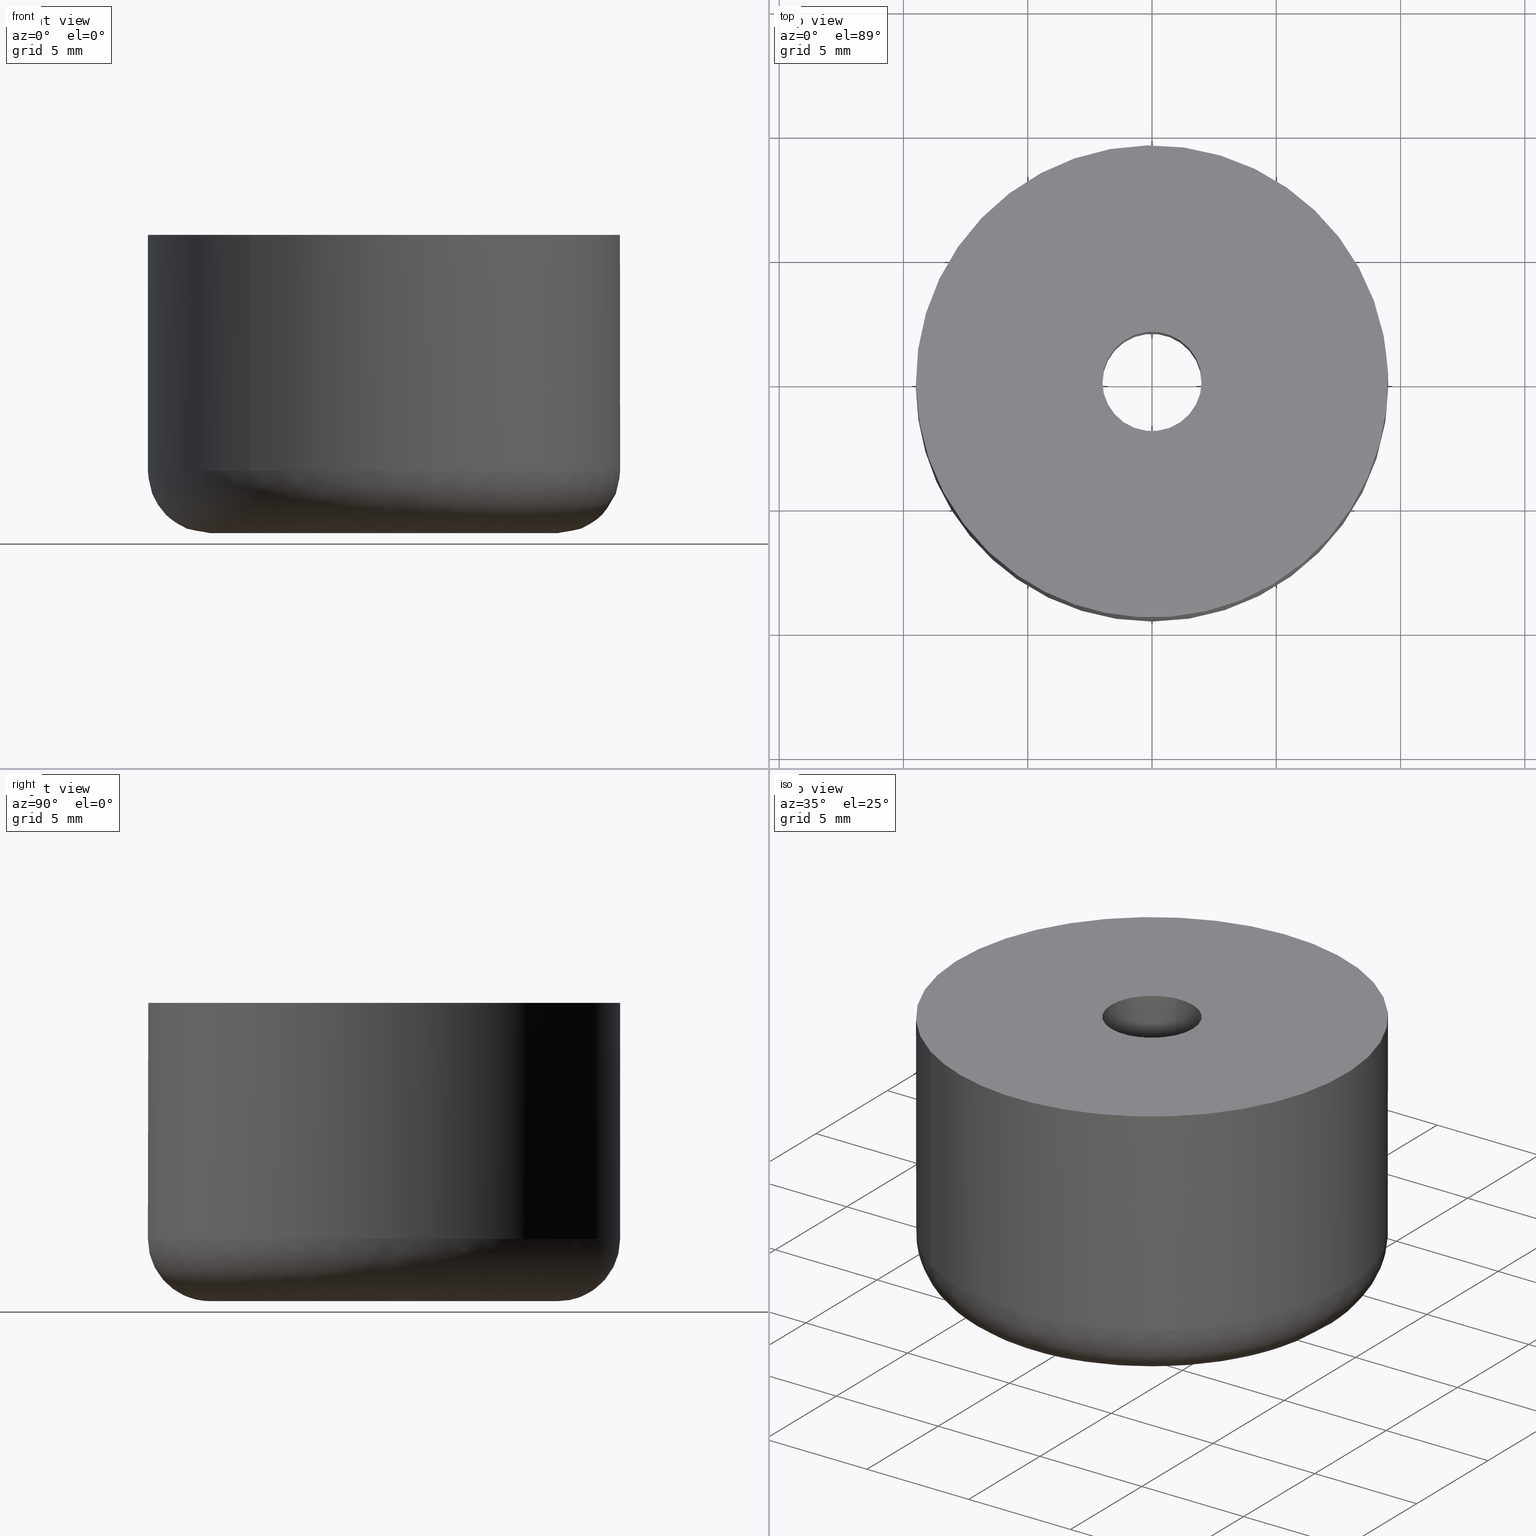
[diagram: canonical four-view strip — front | top / right | iso, engineering-drawing reading convention]
A machine part, canonical four-view strip (front | top / right | iso — engineering-drawing reading convention). The complete STEP part file that produces these views, byte-faithful:
ISO-10303-21;
HEADER;

FILE_DESCRIPTION( (''), '2;1');
FILE_NAME ('PC50.8404.TM_SK_1912_13900.stp','2019-12-20T12:48:53',(''),(''),'spGate 15.6.1','','');

FILE_SCHEMA (('AUTOMOTIVE_DESIGN'));
ENDSEC;

DATA;
#10=(GEOMETRIC_REPRESENTATION_CONTEXT(3) GLOBAL_UNCERTAINTY_ASSIGNED_CONTEXT((#12)) GLOBAL_UNIT_ASSIGNED_CONTEXT((#13,#14,#15)) REPRESENTATION_CONTEXT('ID1','3D'));
#12=UNCERTAINTY_MEASURE_WITH_UNIT(LENGTH_MEASURE(0.01),#16,'DISTANCE_ACCURACY_VALUE','Maximum model space distance between geometric entities at asserted connectivities');
#13=(NAMED_UNIT(*) SI_UNIT($,.STERADIAN.) SOLID_ANGLE_UNIT());
#14=(CONVERSION_BASED_UNIT('DEGREE',#35) NAMED_UNIT(#36) PLANE_ANGLE_UNIT());
#15=(LENGTH_UNIT() NAMED_UNIT(*) SI_UNIT(.MILLI.,.METRE.));
#16=(LENGTH_UNIT() NAMED_UNIT(*) SI_UNIT(.MILLI.,.METRE.));
#17=AXIS2_PLACEMENT_3D('',#38,#39,#40);
#18=AXIS2_PLACEMENT_3D('',#41,#42,#43);
#19=PRODUCT_DEFINITION('','',#48,#49);
#20=AXIS2_PLACEMENT_3D('',#50,#51,#52);
#21=AXIS2_PLACEMENT_3D('',#53,#54,#55);
#22=SHAPE_REPRESENTATION('Assembly',(#18,#20,#21),#10);
#23=AXIS2_PLACEMENT_3D('',#58,#59,#60);
#24=PRODUCT_DEFINITION('','',#65,#66);
#25=SHAPE_REPRESENTATION('washer',(#23),#10);
#26=ITEM_DEFINED_TRANSFORMATION('','',#20,#23);
#27=(REPRESENTATION_RELATIONSHIP('','',#22,#25) REPRESENTATION_RELATIONSHIP_WITH_TRANSFORMATION(#26) SHAPE_REPRESENTATION_RELATIONSHIP());
#29=AXIS2_PLACEMENT_3D('',#73,#74,#75);
#30=PRODUCT_DEFINITION('','',#80,#81);
#31=SHAPE_REPRESENTATION('rubber foot',(#29),#10);
#32=ITEM_DEFINED_TRANSFORMATION('','',#21,#29);
#33=(REPRESENTATION_RELATIONSHIP('','',#22,#31) REPRESENTATION_RELATIONSHIP_WITH_TRANSFORMATION(#32) SHAPE_REPRESENTATION_RELATIONSHIP());
#35=PLANE_ANGLE_MEASURE_WITH_UNIT(PLANE_ANGLE_MEASURE(0.01745329252),#37);
#36=DIMENSIONAL_EXPONENTS(0.0,0.0,0.0,0.0,0.0,0.0,0.0);
#37=(NAMED_UNIT(*) PLANE_ANGLE_UNIT() SI_UNIT($,.RADIAN.));
#38=CARTESIAN_POINT('',(0.00000000000E+000,0.00000000000E+000,0.00000000000E+000));
#39=DIRECTION('',(0.00000000000E+000,0.00000000000E+000,1.00000000000E+000));
#40=DIRECTION('',(1.00000000000E+000,0.00000000000E+000,0.00000000000E+000));
#41=CARTESIAN_POINT('',(0.00000000000E+000,0.00000000000E+000,0.00000000000E+000));
#42=DIRECTION('',(0.00000000000E+000,0.00000000000E+000,1.00000000000E+000));
#43=DIRECTION('',(1.00000000000E+000,0.00000000000E+000,0.00000000000E+000));
#44=APPLICATION_CONTEXT('configuration controlled 3d designs of mechanical parts and assemblies');
#45=APPLICATION_PROTOCOL_DEFINITION('International Standard','automotive_design',1999,#44);
#46=PRODUCT_CONTEXT('',#44,'');
#47=PRODUCT('Assembly','Assembly','',(#46));
#48=PRODUCT_DEFINITION_FORMATION_WITH_SPECIFIED_SOURCE('','',#47,.NOT_KNOWN.);
#49=PRODUCT_DEFINITION_CONTEXT('design',#44,'');
#50=CARTESIAN_POINT('',(0.00000000000E+000,0.00000000000E+000,0.00000000000E+000));
#51=DIRECTION('',(0.00000000000E+000,0.00000000000E+000,1.00000000000E+000));
#52=DIRECTION('',(1.00000000000E+000,0.00000000000E+000,0.00000000000E+000));
#53=CARTESIAN_POINT('',(0.00000000000E+000,0.00000000000E+000,0.00000000000E+000));
#54=DIRECTION('',(0.00000000000E+000,0.00000000000E+000,1.00000000000E+000));
#55=DIRECTION('',(1.00000000000E+000,0.00000000000E+000,0.00000000000E+000));
#56=PRODUCT_DEFINITION_SHAPE('','',#19);
#57=SHAPE_DEFINITION_REPRESENTATION(#56,#22);
#58=CARTESIAN_POINT('',(0.00000000000E+000,0.00000000000E+000,0.00000000000E+000));
#59=DIRECTION('',(0.00000000000E+000,0.00000000000E+000,1.00000000000E+000));
#60=DIRECTION('',(1.00000000000E+000,0.00000000000E+000,0.00000000000E+000));
#61=APPLICATION_CONTEXT('configuration controlled 3d designs of mechanical parts and assemblies');
#62=APPLICATION_PROTOCOL_DEFINITION('International Standard','automotive_design',1999,#61);
#63=PRODUCT_CONTEXT('',#61,'');
#64=PRODUCT('washer','washer','',(#63));
#65=PRODUCT_DEFINITION_FORMATION_WITH_SPECIFIED_SOURCE('','',#64,.NOT_KNOWN.);
#66=PRODUCT_DEFINITION_CONTEXT('design',#61,'');
#67=PRODUCT_DEFINITION_SHAPE('','',#24);
#68=SHAPE_DEFINITION_REPRESENTATION(#67,#25);
#69=NEXT_ASSEMBLY_USAGE_OCCURRENCE('','','',#19,#24,'');
#70=PRODUCT_DEFINITION_SHAPE('','',#69);
#71=CONTEXT_DEPENDENT_SHAPE_REPRESENTATION(#27,#70);
#73=CARTESIAN_POINT('',(0.00000000000E+000,0.00000000000E+000,0.00000000000E+000));
#74=DIRECTION('',(0.00000000000E+000,0.00000000000E+000,1.00000000000E+000));
#75=DIRECTION('',(1.00000000000E+000,0.00000000000E+000,0.00000000000E+000));
#76=APPLICATION_CONTEXT('configuration controlled 3d designs of mechanical parts and assemblies');
#77=APPLICATION_PROTOCOL_DEFINITION('International Standard','automotive_design',1999,#76);
#78=PRODUCT_CONTEXT('',#76,'');
#79=PRODUCT('rubber foot','rubber foot','',(#78));
#80=PRODUCT_DEFINITION_FORMATION_WITH_SPECIFIED_SOURCE('','',#79,.NOT_KNOWN.);
#81=PRODUCT_DEFINITION_CONTEXT('design',#76,'');
#82=PRODUCT_DEFINITION_SHAPE('','',#30);
#83=SHAPE_DEFINITION_REPRESENTATION(#82,#31);
#84=NEXT_ASSEMBLY_USAGE_OCCURRENCE('','','',#19,#30,'');
#85=PRODUCT_DEFINITION_SHAPE('','',#84);
#86=CONTEXT_DEPENDENT_SHAPE_REPRESENTATION(#33,#85);
#88=SHAPE_REPRESENTATION_RELATIONSHIP('','',#25,#91);
#89=SHAPE_REPRESENTATION_RELATIONSHIP('','',#31,#93);
#90=MANIFOLD_SOLID_BREP('washer',#94);
#91=ADVANCED_BREP_SHAPE_REPRESENTATION('washer',(#90),#10);
#92=MANIFOLD_SOLID_BREP('rubber foot',#103);
#93=ADVANCED_BREP_SHAPE_REPRESENTATION('rubber foot',(#92),#10);
#94=CLOSED_SHELL('',(#112,#113,#114,#115,#116,#117));
#95=COLOUR_RGB('',0.00000000000E+000,0.00000000000E+000,0.00000000000E+000);
#96=FILL_AREA_STYLE_COLOUR('',#95);
#97=FILL_AREA_STYLE('',(#96));
#98=SURFACE_STYLE_FILL_AREA(#97);
#99=SURFACE_SIDE_STYLE('',(#98));
#100=SURFACE_STYLE_USAGE(.BOTH.,#99);
#101=PRESENTATION_STYLE_ASSIGNMENT((#100));
#102=STYLED_ITEM('',(#101),#90);
#103=CLOSED_SHELL('',(#118,#119,#120,#121,#122,#123,#124,#125,#126,#127,#128,#129,#130,#131));
#104=COLOUR_RGB('',0.00000000000E+000,0.00000000000E+000,0.00000000000E+000);
#105=FILL_AREA_STYLE_COLOUR('',#104);
#106=FILL_AREA_STYLE('',(#105));
#107=SURFACE_STYLE_FILL_AREA(#106);
#108=SURFACE_SIDE_STYLE('',(#107));
#109=SURFACE_STYLE_USAGE(.BOTH.,#108);
#110=PRESENTATION_STYLE_ASSIGNMENT((#109));
#111=STYLED_ITEM('',(#110),#92);
#112=ADVANCED_FACE('',(#133,#134),#132,.F.);
#113=ADVANCED_FACE('',(#144,#145),#143,.F.);
#114=ADVANCED_FACE('',(#155),#154,.F.);
#115=ADVANCED_FACE('',(#165),#164,.F.);
#116=ADVANCED_FACE('',(#175),#174,.T.);
#117=ADVANCED_FACE('',(#185),#184,.T.);
#118=ADVANCED_FACE('',(#195,#196),#194,.T.);
#119=ADVANCED_FACE('',(#206,#207),#205,.T.);
#120=ADVANCED_FACE('',(#217,#218),#216,.T.);
#121=ADVANCED_FACE('',(#228,#229),#227,.T.);
#122=ADVANCED_FACE('',(#239),#238,.F.);
#123=ADVANCED_FACE('',(#249),#248,.F.);
#124=ADVANCED_FACE('',(#259),#258,.F.);
#125=ADVANCED_FACE('',(#269),#268,.F.);
#126=ADVANCED_FACE('',(#279),#278,.F.);
#127=ADVANCED_FACE('',(#289),#288,.F.);
#128=ADVANCED_FACE('',(#299),#298,.T.);
#129=ADVANCED_FACE('',(#309),#308,.T.);
#130=ADVANCED_FACE('',(#319),#318,.T.);
#131=ADVANCED_FACE('',(#329),#328,.T.);
#132=PLANE('',#341);
#133=FACE_OUTER_BOUND('',#342,.T.);
#134=FACE_BOUND('',#343,.T.);
#135=COLOUR_RGB('',1.00000000000E+000,1.00000000000E+000,1.00000000000E+000);
#136=FILL_AREA_STYLE_COLOUR('',#135);
#137=FILL_AREA_STYLE('',(#136));
#138=SURFACE_STYLE_FILL_AREA(#137);
#139=SURFACE_SIDE_STYLE('',(#138));
#140=SURFACE_STYLE_USAGE(.BOTH.,#139);
#141=PRESENTATION_STYLE_ASSIGNMENT((#140));
#142=STYLED_ITEM('',(#141),#112);
#143=PLANE('',#347);
#144=FACE_OUTER_BOUND('',#348,.T.);
#145=FACE_BOUND('',#349,.T.);
#146=COLOUR_RGB('',1.00000000000E+000,1.00000000000E+000,1.00000000000E+000);
#147=FILL_AREA_STYLE_COLOUR('',#146);
#148=FILL_AREA_STYLE('',(#147));
#149=SURFACE_STYLE_FILL_AREA(#148);
#150=SURFACE_SIDE_STYLE('',(#149));
#151=SURFACE_STYLE_USAGE(.BOTH.,#150);
#152=PRESENTATION_STYLE_ASSIGNMENT((#151));
#153=STYLED_ITEM('',(#152),#113);
#154=CYLINDRICAL_SURFACE('',#353,2.00000000000E+000);
#155=FACE_OUTER_BOUND('',#354,.T.);
#156=COLOUR_RGB('',1.00000000000E+000,1.00000000000E+000,1.00000000000E+000);
#157=FILL_AREA_STYLE_COLOUR('',#156);
#158=FILL_AREA_STYLE('',(#157));
#159=SURFACE_STYLE_FILL_AREA(#158);
#160=SURFACE_SIDE_STYLE('',(#159));
#161=SURFACE_STYLE_USAGE(.BOTH.,#160);
#162=PRESENTATION_STYLE_ASSIGNMENT((#161));
#163=STYLED_ITEM('',(#162),#114);
#164=CYLINDRICAL_SURFACE('',#358,2.00000000000E+000);
#165=FACE_OUTER_BOUND('',#359,.T.);
#166=COLOUR_RGB('',1.00000000000E+000,1.00000000000E+000,1.00000000000E+000);
#167=FILL_AREA_STYLE_COLOUR('',#166);
#168=FILL_AREA_STYLE('',(#167));
#169=SURFACE_STYLE_FILL_AREA(#168);
#170=SURFACE_SIDE_STYLE('',(#169));
#171=SURFACE_STYLE_USAGE(.BOTH.,#170);
#172=PRESENTATION_STYLE_ASSIGNMENT((#171));
#173=STYLED_ITEM('',(#172),#115);
#174=CYLINDRICAL_SURFACE('',#363,6.00000000000E+000);
#175=FACE_OUTER_BOUND('',#364,.T.);
#176=COLOUR_RGB('',1.00000000000E+000,1.00000000000E+000,1.00000000000E+000);
#177=FILL_AREA_STYLE_COLOUR('',#176);
#178=FILL_AREA_STYLE('',(#177));
#179=SURFACE_STYLE_FILL_AREA(#178);
#180=SURFACE_SIDE_STYLE('',(#179));
#181=SURFACE_STYLE_USAGE(.BOTH.,#180);
#182=PRESENTATION_STYLE_ASSIGNMENT((#181));
#183=STYLED_ITEM('',(#182),#116);
#184=CYLINDRICAL_SURFACE('',#368,6.00000000000E+000);
#185=FACE_OUTER_BOUND('',#369,.T.);
#186=COLOUR_RGB('',1.00000000000E+000,1.00000000000E+000,1.00000000000E+000);
#187=FILL_AREA_STYLE_COLOUR('',#186);
#188=FILL_AREA_STYLE('',(#187));
#189=SURFACE_STYLE_FILL_AREA(#188);
#190=SURFACE_SIDE_STYLE('',(#189));
#191=SURFACE_STYLE_USAGE(.BOTH.,#190);
#192=PRESENTATION_STYLE_ASSIGNMENT((#191));
#193=STYLED_ITEM('',(#192),#117);
#194=PLANE('',#373);
#195=FACE_OUTER_BOUND('',#374,.T.);
#196=FACE_BOUND('',#375,.T.);
#197=COLOUR_RGB('',1.00000000000E+000,1.00000000000E+000,1.00000000000E+000);
#198=FILL_AREA_STYLE_COLOUR('',#197);
#199=FILL_AREA_STYLE('',(#198));
#200=SURFACE_STYLE_FILL_AREA(#199);
#201=SURFACE_SIDE_STYLE('',(#200));
#202=SURFACE_STYLE_USAGE(.BOTH.,#201);
#203=PRESENTATION_STYLE_ASSIGNMENT((#202));
#204=STYLED_ITEM('',(#203),#118);
#205=PLANE('',#379);
#206=FACE_OUTER_BOUND('',#380,.T.);
#207=FACE_BOUND('',#381,.T.);
#208=COLOUR_RGB('',1.00000000000E+000,1.00000000000E+000,1.00000000000E+000);
#209=FILL_AREA_STYLE_COLOUR('',#208);
#210=FILL_AREA_STYLE('',(#209));
#211=SURFACE_STYLE_FILL_AREA(#210);
#212=SURFACE_SIDE_STYLE('',(#211));
#213=SURFACE_STYLE_USAGE(.BOTH.,#212);
#214=PRESENTATION_STYLE_ASSIGNMENT((#213));
#215=STYLED_ITEM('',(#214),#119);
#216=PLANE('',#385);
#217=FACE_OUTER_BOUND('',#386,.T.);
#218=FACE_BOUND('',#387,.T.);
#219=COLOUR_RGB('',1.00000000000E+000,1.00000000000E+000,1.00000000000E+000);
#220=FILL_AREA_STYLE_COLOUR('',#219);
#221=FILL_AREA_STYLE('',(#220));
#222=SURFACE_STYLE_FILL_AREA(#221);
#223=SURFACE_SIDE_STYLE('',(#222));
#224=SURFACE_STYLE_USAGE(.BOTH.,#223);
#225=PRESENTATION_STYLE_ASSIGNMENT((#224));
#226=STYLED_ITEM('',(#225),#120);
#227=PLANE('',#391);
#228=FACE_OUTER_BOUND('',#392,.T.);
#229=FACE_BOUND('',#393,.T.);
#230=COLOUR_RGB('',1.00000000000E+000,1.00000000000E+000,1.00000000000E+000);
#231=FILL_AREA_STYLE_COLOUR('',#230);
#232=FILL_AREA_STYLE('',(#231));
#233=SURFACE_STYLE_FILL_AREA(#232);
#234=SURFACE_SIDE_STYLE('',(#233));
#235=SURFACE_STYLE_USAGE(.BOTH.,#234);
#236=PRESENTATION_STYLE_ASSIGNMENT((#235));
#237=STYLED_ITEM('',(#236),#121);
#238=CYLINDRICAL_SURFACE('',#397,4.50000000000E+000);
#239=FACE_OUTER_BOUND('',#398,.T.);
#240=COLOUR_RGB('',1.00000000000E+000,1.00000000000E+000,1.00000000000E+000);
#241=FILL_AREA_STYLE_COLOUR('',#240);
#242=FILL_AREA_STYLE('',(#241));
#243=SURFACE_STYLE_FILL_AREA(#242);
#244=SURFACE_SIDE_STYLE('',(#243));
#245=SURFACE_STYLE_USAGE(.BOTH.,#244);
#246=PRESENTATION_STYLE_ASSIGNMENT((#245));
#247=STYLED_ITEM('',(#246),#122);
#248=CYLINDRICAL_SURFACE('',#402,4.50000000000E+000);
#249=FACE_OUTER_BOUND('',#403,.T.);
#250=COLOUR_RGB('',1.00000000000E+000,1.00000000000E+000,1.00000000000E+000);
#251=FILL_AREA_STYLE_COLOUR('',#250);
#252=FILL_AREA_STYLE('',(#251));
#253=SURFACE_STYLE_FILL_AREA(#252);
#254=SURFACE_SIDE_STYLE('',(#253));
#255=SURFACE_STYLE_USAGE(.BOTH.,#254);
#256=PRESENTATION_STYLE_ASSIGNMENT((#255));
#257=STYLED_ITEM('',(#256),#123);
#258=CYLINDRICAL_SURFACE('',#407,6.00000000000E+000);
#259=FACE_OUTER_BOUND('',#408,.T.);
#260=COLOUR_RGB('',1.00000000000E+000,1.00000000000E+000,1.00000000000E+000);
#261=FILL_AREA_STYLE_COLOUR('',#260);
#262=FILL_AREA_STYLE('',(#261));
#263=SURFACE_STYLE_FILL_AREA(#262);
#264=SURFACE_SIDE_STYLE('',(#263));
#265=SURFACE_STYLE_USAGE(.BOTH.,#264);
#266=PRESENTATION_STYLE_ASSIGNMENT((#265));
#267=STYLED_ITEM('',(#266),#124);
#268=CYLINDRICAL_SURFACE('',#412,6.00000000000E+000);
#269=FACE_OUTER_BOUND('',#413,.T.);
#270=COLOUR_RGB('',1.00000000000E+000,1.00000000000E+000,1.00000000000E+000);
#271=FILL_AREA_STYLE_COLOUR('',#270);
#272=FILL_AREA_STYLE('',(#271));
#273=SURFACE_STYLE_FILL_AREA(#272);
#274=SURFACE_SIDE_STYLE('',(#273));
#275=SURFACE_STYLE_USAGE(.BOTH.,#274);
#276=PRESENTATION_STYLE_ASSIGNMENT((#275));
#277=STYLED_ITEM('',(#276),#125);
#278=CYLINDRICAL_SURFACE('',#417,2.00000000000E+000);
#279=FACE_OUTER_BOUND('',#418,.T.);
#280=COLOUR_RGB('',1.00000000000E+000,1.00000000000E+000,1.00000000000E+000);
#281=FILL_AREA_STYLE_COLOUR('',#280);
#282=FILL_AREA_STYLE('',(#281));
#283=SURFACE_STYLE_FILL_AREA(#282);
#284=SURFACE_SIDE_STYLE('',(#283));
#285=SURFACE_STYLE_USAGE(.BOTH.,#284);
#286=PRESENTATION_STYLE_ASSIGNMENT((#285));
#287=STYLED_ITEM('',(#286),#126);
#288=CYLINDRICAL_SURFACE('',#422,2.00000000000E+000);
#289=FACE_OUTER_BOUND('',#423,.T.);
#290=COLOUR_RGB('',1.00000000000E+000,1.00000000000E+000,1.00000000000E+000);
#291=FILL_AREA_STYLE_COLOUR('',#290);
#292=FILL_AREA_STYLE('',(#291));
#293=SURFACE_STYLE_FILL_AREA(#292);
#294=SURFACE_SIDE_STYLE('',(#293));
#295=SURFACE_STYLE_USAGE(.BOTH.,#294);
#296=PRESENTATION_STYLE_ASSIGNMENT((#295));
#297=STYLED_ITEM('',(#296),#127);
#298=CYLINDRICAL_SURFACE('',#427,9.50000000000E+000);
#299=FACE_OUTER_BOUND('',#428,.T.);
#300=COLOUR_RGB('',1.00000000000E+000,1.00000000000E+000,1.00000000000E+000);
#301=FILL_AREA_STYLE_COLOUR('',#300);
#302=FILL_AREA_STYLE('',(#301));
#303=SURFACE_STYLE_FILL_AREA(#302);
#304=SURFACE_SIDE_STYLE('',(#303));
#305=SURFACE_STYLE_USAGE(.BOTH.,#304);
#306=PRESENTATION_STYLE_ASSIGNMENT((#305));
#307=STYLED_ITEM('',(#306),#128);
#308=CYLINDRICAL_SURFACE('',#432,9.50000000000E+000);
#309=FACE_OUTER_BOUND('',#433,.T.);
#310=COLOUR_RGB('',1.00000000000E+000,1.00000000000E+000,1.00000000000E+000);
#311=FILL_AREA_STYLE_COLOUR('',#310);
#312=FILL_AREA_STYLE('',(#311));
#313=SURFACE_STYLE_FILL_AREA(#312);
#314=SURFACE_SIDE_STYLE('',(#313));
#315=SURFACE_STYLE_USAGE(.BOTH.,#314);
#316=PRESENTATION_STYLE_ASSIGNMENT((#315));
#317=STYLED_ITEM('',(#316),#129);
#318=( BOUNDED_SURFACE() B_SPLINE_SURFACE( 2,2,((#434,#435,#436,#437,#438),(#439,#440,#441,#442,#443),(#444,#445,#446,#447,#448),(#449,#450,#451,#452,#453),(#454,#455,#456,#457,#458)), .UNSPECIFIED.,.F.,.F.,.F.) B_SPLINE_SURFACE_WITH_KNOTS((3,2,3),(3,2,3),(0.00000000000E+000,5.00000000000E-001,1.00000000000E+000),(0.00000000000E+000,5.00000000000E-001,1.00000000000E+000), .UNSPECIFIED. ) GEOMETRIC_REPRESENTATION_ITEM() RATIONAL_B_SPLINE_SURFACE(((1.00000000000E+000,7.07106781126E-001,1.00000000000E+000,7.07106781126E-001,1.00000000000E+000),(7.07106781187E-001,4.99999999957E-001,7.07106781187E-001,4.99999999957E-001,7.07106781187E-001),(1.00000000000E+000,7.07106781126E-001,1.00000000000E+000,7.07106781126E-001,1.00000000000E+000),(7.07106781187E-001,4.99999999957E-001,7.07106781187E-001,4.99999999957E-001,7.07106781187E-001),(1.00000000000E+000,7.07106781126E-001,1.00000000000E+000,7.07106781126E-001,1.00000000000E+000))) REPRESENTATION_ITEM('') SURFACE() );
#319=FACE_OUTER_BOUND('',#459,.T.);
#320=COLOUR_RGB('',1.00000000000E+000,1.00000000000E+000,1.00000000000E+000);
#321=FILL_AREA_STYLE_COLOUR('',#320);
#322=FILL_AREA_STYLE('',(#321));
#323=SURFACE_STYLE_FILL_AREA(#322);
#324=SURFACE_SIDE_STYLE('',(#323));
#325=SURFACE_STYLE_USAGE(.BOTH.,#324);
#326=PRESENTATION_STYLE_ASSIGNMENT((#325));
#327=STYLED_ITEM('',(#326),#130);
#328=( BOUNDED_SURFACE() B_SPLINE_SURFACE( 2,2,((#460,#461,#462,#463,#464),(#465,#466,#467,#468,#469),(#470,#471,#472,#473,#474),(#475,#476,#477,#478,#479),(#480,#481,#482,#483,#484)), .UNSPECIFIED.,.F.,.F.,.F.) B_SPLINE_SURFACE_WITH_KNOTS((3,2,3),(3,2,3),(0.00000000000E+000,5.00000000000E-001,1.00000000000E+000),(0.00000000000E+000,5.00000000000E-001,1.00000000000E+000), .UNSPECIFIED. ) GEOMETRIC_REPRESENTATION_ITEM() RATIONAL_B_SPLINE_SURFACE(((1.00000000000E+000,7.07106781126E-001,1.00000000000E+000,7.07106781126E-001,1.00000000000E+000),(7.07106781187E-001,4.99999999957E-001,7.07106781187E-001,4.99999999957E-001,7.07106781187E-001),(1.00000000000E+000,7.07106781126E-001,1.00000000000E+000,7.07106781126E-001,1.00000000000E+000),(7.07106781187E-001,4.99999999957E-001,7.07106781187E-001,4.99999999957E-001,7.07106781187E-001),(1.00000000000E+000,7.07106781126E-001,1.00000000000E+000,7.07106781126E-001,1.00000000000E+000))) REPRESENTATION_ITEM('') SURFACE() );
#329=FACE_OUTER_BOUND('',#485,.T.);
#330=COLOUR_RGB('',1.00000000000E+000,1.00000000000E+000,1.00000000000E+000);
#331=FILL_AREA_STYLE_COLOUR('',#330);
#332=FILL_AREA_STYLE('',(#331));
#333=SURFACE_STYLE_FILL_AREA(#332);
#334=SURFACE_SIDE_STYLE('',(#333));
#335=SURFACE_STYLE_USAGE(.BOTH.,#334);
#336=PRESENTATION_STYLE_ASSIGNMENT((#335));
#337=STYLED_ITEM('',(#336),#131);
#338=CARTESIAN_POINT('',(1.38000000000E+001,-1.24707658145E+001,7.80000000000E+000));
#339=DIRECTION('',(0.00000000000E+000,0.00000000000E+000,-1.00000000000E+000));
#340=DIRECTION('',(-1.00000000000E+000,0.00000000000E+000,0.00000000000E+000));
#341=AXIS2_PLACEMENT_3D('',#338,#339,#340);
#342=EDGE_LOOP('',(#486,#487,#488));
#343=EDGE_LOOP('',(#489,#490,#491));
#344=CARTESIAN_POINT('',(-7.80000000000E+000,-1.24707658145E+001,7.00000000000E+000));
#345=DIRECTION('',(0.00000000000E+000,0.00000000000E+000,1.00000000000E+000));
#346=DIRECTION('',(1.00000000000E+000,0.00000000000E+000,0.00000000000E+000));
#347=AXIS2_PLACEMENT_3D('',#344,#345,#346);
#348=EDGE_LOOP('',(#492,#493,#494));
#349=EDGE_LOOP('',(#495,#496,#497));
#350=CARTESIAN_POINT('',(-6.73823919888E-013,-6.39499904713E-014,7.80000000000E+000));
#351=DIRECTION('',(-1.14710488434E-014,-4.69067566453E-016,1.00000000000E+000));
#352=DIRECTION('',(1.18033411424E-001,-9.93009624217E-001,8.88178419700E-016));
#353=AXIS2_PLACEMENT_3D('',#350,#351,#352);
#354=EDGE_LOOP('',(#498,#499,#500,#501));
#355=CARTESIAN_POINT('',(-6.73823919888E-013,-6.39499904713E-014,7.80000000000E+000));
#356=DIRECTION('',(-1.14710488434E-014,-4.69067566453E-016,1.00000000000E+000));
#357=DIRECTION('',(1.18033411424E-001,-9.93009624217E-001,8.88178419700E-016));
#358=AXIS2_PLACEMENT_3D('',#355,#356,#357);
#359=EDGE_LOOP('',(#502,#503,#504,#505,#506,#507));
#360=CARTESIAN_POINT('',(1.92638520963E-015,7.36530532792E-016,7.82000000000E+000));
#361=DIRECTION('',(7.55594553797E-015,8.98138663330E-016,1.00000000000E+000));
#362=DIRECTION('',(1.18034234657E-001,-9.93009526364E-001,-4.14151975241E-030));
#363=AXIS2_PLACEMENT_3D('',#360,#361,#362);
#364=EDGE_LOOP('',(#508,#509,#510,#511));
#365=CARTESIAN_POINT('',(1.92638520963E-015,7.36530532792E-016,7.82000000000E+000));
#366=DIRECTION('',(7.55594553797E-015,8.98138663330E-016,1.00000000000E+000));
#367=DIRECTION('',(1.18034234657E-001,-9.93009526364E-001,-4.14151975241E-030));
#368=AXIS2_PLACEMENT_3D('',#365,#366,#367);
#369=EDGE_LOOP('',(#512,#513,#514,#515,#516,#517));
#370=CARTESIAN_POINT('',(1.61000000000E+001,-1.45492267836E+001,0.00000000000E+000));
#371=DIRECTION('',(0.00000000000E+000,0.00000000000E+000,-1.00000000000E+000));
#372=DIRECTION('',(-1.00000000000E+000,0.00000000000E+000,0.00000000000E+000));
#373=AXIS2_PLACEMENT_3D('',#370,#371,#372);
#374=EDGE_LOOP('',(#518,#519,#520));
#375=EDGE_LOOP('',(#521,#522,#523));
#376=CARTESIAN_POINT('',(-1.89391557203E+001,-1.37320234655E+001,1.20000000000E+001));
#377=DIRECTION('',(0.00000000000E+000,0.00000000000E+000,1.00000000000E+000));
#378=DIRECTION('',(1.00000000000E+000,0.00000000000E+000,0.00000000000E+000));
#379=AXIS2_PLACEMENT_3D('',#376,#377,#378);
#380=EDGE_LOOP('',(#524,#525,#526));
#381=EDGE_LOOP('',(#527,#528,#529));
#382=CARTESIAN_POINT('',(-7.80000000000E+000,-1.24707658145E+001,7.00000000000E+000));
#383=DIRECTION('',(0.00000000000E+000,0.00000000000E+000,1.00000000000E+000));
#384=DIRECTION('',(1.00000000000E+000,0.00000000000E+000,0.00000000000E+000));
#385=AXIS2_PLACEMENT_3D('',#382,#383,#384);
#386=EDGE_LOOP('',(#530,#531,#532));
#387=EDGE_LOOP('',(#533,#534,#535));
#388=CARTESIAN_POINT('',(1.38000000000E+001,-1.24707658145E+001,7.80000000000E+000));
#389=DIRECTION('',(0.00000000000E+000,0.00000000000E+000,-1.00000000000E+000));
#390=DIRECTION('',(-1.00000000000E+000,0.00000000000E+000,0.00000000000E+000));
#391=AXIS2_PLACEMENT_3D('',#388,#389,#390);
#392=EDGE_LOOP('',(#536,#537,#538));
#393=EDGE_LOOP('',(#539,#540,#541));
#394=CARTESIAN_POINT('',(-1.39123543910E-014,-1.40301068486E-015,7.17500000000E+000));
#395=DIRECTION('',(-3.74568240344E-015,-4.45231132249E-016,1.00000000000E+000));
#396=DIRECTION('',(1.18034234657E-001,-9.93009526364E-001,-1.16850021586E-029));
#397=AXIS2_PLACEMENT_3D('',#394,#395,#396);
#398=EDGE_LOOP('',(#542,#543,#544,#545));
#399=CARTESIAN_POINT('',(-1.39123543910E-014,-1.40301068486E-015,7.17500000000E+000));
#400=DIRECTION('',(-3.74568240344E-015,-4.45231132249E-016,1.00000000000E+000));
#401=DIRECTION('',(1.18034234657E-001,-9.93009526364E-001,-1.16850021586E-029));
#402=AXIS2_PLACEMENT_3D('',#399,#400,#401);
#403=EDGE_LOOP('',(#546,#547,#548,#549,#550,#551));
#404=CARTESIAN_POINT('',(1.92638520963E-015,7.36530532792E-016,7.82000000000E+000));
#405=DIRECTION('',(7.55594553797E-015,8.98138663330E-016,1.00000000000E+000));
#406=DIRECTION('',(1.18034234657E-001,-9.93009526364E-001,-4.14151975241E-030));
#407=AXIS2_PLACEMENT_3D('',#404,#405,#406);
#408=EDGE_LOOP('',(#552,#553,#554,#555));
#409=CARTESIAN_POINT('',(1.92638520963E-015,7.36530532792E-016,7.82000000000E+000));
#410=DIRECTION('',(7.55594553797E-015,8.98138663330E-016,1.00000000000E+000));
#411=DIRECTION('',(1.18034234657E-001,-9.93009526364E-001,-4.14151975241E-030));
#412=AXIS2_PLACEMENT_3D('',#409,#410,#411);
#413=EDGE_LOOP('',(#556,#557,#558,#559,#560,#561));
#414=CARTESIAN_POINT('',(-6.57521130764E-013,-6.03806158571E-014,1.20000000000E+001));
#415=DIRECTION('',(5.57827123169E-015,1.55748823104E-015,1.00000000000E+000));
#416=DIRECTION('',(1.18033411424E-001,-9.93009624217E-001,8.88178419700E-016));
#417=AXIS2_PLACEMENT_3D('',#414,#415,#416);
#418=EDGE_LOOP('',(#562,#563,#564,#565));
#419=CARTESIAN_POINT('',(-6.57521130764E-013,-6.03806158571E-014,1.20000000000E+001));
#420=DIRECTION('',(5.57827123169E-015,1.55748823104E-015,1.00000000000E+000));
#421=DIRECTION('',(1.18033411424E-001,-9.93009624217E-001,8.88178419700E-016));
#422=AXIS2_PLACEMENT_3D('',#419,#420,#421);
#423=EDGE_LOOP('',(#566,#567,#568,#569,#570,#571));
#424=CARTESIAN_POINT('',(-3.04271018864E-015,3.51144497067E-015,1.22375000000E+001));
#425=DIRECTION('',(-5.20716812179E-016,7.03630289371E-016,1.00000000000E+000));
#426=DIRECTION('',(5.70840232490E-001,8.21061160311E-001,-2.80477395695E-016));
#427=AXIS2_PLACEMENT_3D('',#424,#425,#426);
#428=EDGE_LOOP('',(#572,#573,#574,#575,#576,#577,#578,#579));
#429=CARTESIAN_POINT('',(-3.04271018864E-015,3.51144497067E-015,1.22375000000E+001));
#430=DIRECTION('',(-5.20716812179E-016,7.03630289371E-016,1.00000000000E+000));
#431=DIRECTION('',(5.70840232490E-001,8.21061160311E-001,-2.80477395695E-016));
#432=AXIS2_PLACEMENT_3D('',#429,#430,#431);
#433=EDGE_LOOP('',(#580,#581,#582,#583,#584,#585,#586));
#434=CARTESIAN_POINT('',(-5.67829474846E-014,-9.50000000000E+000,2.50000000000E+000));
#435=CARTESIAN_POINT('',(-6.82668475660E-014,-9.50000000000E+000,-4.31779508416E-010));
#436=CARTESIAN_POINT('',(-6.79606959755E-014,-6.99999999957E+000,-1.55786494815E-012));
#437=CARTESIAN_POINT('',(-6.76545443851E-014,-4.49999999914E+000,4.28663502922E-010));
#438=CARTESIAN_POINT('',(-5.61706443038E-014,-4.50000000000E+000,2.50000000086E+000));
#439=CARTESIAN_POINT('',(-9.50000000000E+000,-9.50000000000E+000,2.50000000000E+000));
#440=CARTESIAN_POINT('',(-9.50000000000E+000,-9.50000000000E+000,-4.31735956066E-010));
#441=CARTESIAN_POINT('',(-6.99999999957E+000,-6.99999999957E+000,-1.52559225376E-012));
#442=CARTESIAN_POINT('',(-4.49999999914E+000,-4.49999999914E+000,4.28684355857E-010));
#443=CARTESIAN_POINT('',(-4.50000000000E+000,-4.50000000000E+000,2.50000000086E+000));
#444=CARTESIAN_POINT('',(-9.50000000000E+000,-1.24318421464E-013,2.50000000000E+000));
#445=CARTESIAN_POINT('',(-9.50000000000E+000,1.54407590228E-013,-4.30676675472E-010));
#446=CARTESIAN_POINT('',(-6.99999999957E+000,1.54254519442E-013,-7.45181694128E-013));
#447=CARTESIAN_POINT('',(-4.49999999914E+000,1.54101448655E-013,4.29186029692E-010));
#448=CARTESIAN_POINT('',(-4.50000000000E+000,-1.24624563037E-013,2.50000000086E+000));
#449=CARTESIAN_POINT('',(-9.50000000000E+000,9.50000000000E+000,2.50000000000E+000));
#450=CARTESIAN_POINT('',(-9.50000000000E+000,9.50000000000E+000,-4.29617650535E-010));
#451=CARTESIAN_POINT('',(-6.99999999957E+000,6.99999999957E+000,3.50796501673E-014));
#452=CARTESIAN_POINT('',(-4.49999999914E+000,4.49999999914E+000,4.29687553382E-010));
#453=CARTESIAN_POINT('',(-4.50000000000E+000,4.50000000000E+000,2.50000000086E+000));
#454=CARTESIAN_POINT('',(-5.56196098716E-014,9.50000000000E+000,2.50000000000E+000));
#455=CARTESIAN_POINT('',(-6.71035099529E-014,9.50000000000E+000,-4.29661139670E-010));
#456=CARTESIAN_POINT('',(-6.71034998396E-014,6.99999999957E+000,3.10862446895E-015));
#457=CARTESIAN_POINT('',(-6.71034897263E-014,4.49999999914E+000,4.29666792003E-010));
#458=CARTESIAN_POINT('',(-5.56195896450E-014,4.50000000000E+000,2.50000000086E+000));
#459=EDGE_LOOP('',(#587,#588,#589,#590,#591,#592,#593,#594,#595));
#460=CARTESIAN_POINT('',(-5.56196098716E-014,9.50000000000E+000,2.50000000000E+000));
#461=CARTESIAN_POINT('',(-6.71035099529E-014,9.50000000000E+000,-4.29661453689E-010));
#462=CARTESIAN_POINT('',(-6.71034998396E-014,6.99999999957E+000,2.66453525910E-015));
#463=CARTESIAN_POINT('',(-6.71034897263E-014,4.49999999914E+000,4.29666163966E-010));
#464=CARTESIAN_POINT('',(-5.56195896450E-014,4.50000000000E+000,2.50000000086E+000));
#465=CARTESIAN_POINT('',(9.50000000000E+000,9.50000000000E+000,2.50000000000E+000));
#466=CARTESIAN_POINT('',(9.50000000000E+000,9.50000000000E+000,-4.29705006038E-010));
#467=CARTESIAN_POINT('',(6.99999999957E+000,6.99999999957E+000,-2.96081591305E-014));
#468=CARTESIAN_POINT('',(4.49999999914E+000,4.49999999914E+000,4.29645311030E-010));
#469=CARTESIAN_POINT('',(4.50000000000E+000,4.50000000000E+000,2.50000000086E+000));
#470=CARTESIAN_POINT('',(9.50000000000E+000,-1.24318344618E-013,2.50000000000E+000));
#471=CARTESIAN_POINT('',(9.50000000000E+000,1.54407667074E-013,-4.30764286632E-010));
#472=CARTESIAN_POINT('',(6.99999999957E+000,1.54254576065E-013,-8.10018718767E-013));
#473=CARTESIAN_POINT('',(4.49999999914E+000,1.54101485056E-013,4.29143637196E-010));
#474=CARTESIAN_POINT('',(4.50000000000E+000,-1.24624526636E-013,2.50000000086E+000));
#475=CARTESIAN_POINT('',(9.50000000000E+000,-9.50000000000E+000,2.50000000000E+000));
#476=CARTESIAN_POINT('',(9.50000000000E+000,-9.50000000000E+000,-4.31823311569E-010));
#477=CARTESIAN_POINT('',(6.99999999957E+000,-6.99999999957E+000,-1.59028006306E-012));
#478=CARTESIAN_POINT('',(4.49999999914E+000,-4.49999999914E+000,4.28642113505E-010));
#479=CARTESIAN_POINT('',(4.50000000000E+000,-4.50000000000E+000,2.50000000086E+000));
#480=CARTESIAN_POINT('',(-5.44561185663E-014,-9.50000000000E+000,2.50000000000E+000));
#481=CARTESIAN_POINT('',(-6.59400186476E-014,-9.50000000000E+000,-4.31779822434E-010));
#482=CARTESIAN_POINT('',(-6.62461904568E-014,-6.99999999957E+000,-1.55830903736E-012));
#483=CARTESIAN_POINT('',(-6.65523622660E-014,-4.49999999914E+000,4.28662874885E-010));
#484=CARTESIAN_POINT('',(-5.50684621845E-014,-4.50000000000E+000,2.50000000086E+000));
#485=EDGE_LOOP('',(#596,#597,#598,#599,#600,#601));
#486=ORIENTED_EDGE('',*,*,#602,.F.);
#487=ORIENTED_EDGE('',*,*,#603,.F.);
#488=ORIENTED_EDGE('',*,*,#604,.F.);
#489=ORIENTED_EDGE('',*,*,#605,.T.);
#490=ORIENTED_EDGE('',*,*,#606,.T.);
#491=ORIENTED_EDGE('',*,*,#607,.T.);
#492=ORIENTED_EDGE('',*,*,#608,.T.);
#493=ORIENTED_EDGE('',*,*,#609,.T.);
#494=ORIENTED_EDGE('',*,*,#610,.T.);
#495=ORIENTED_EDGE('',*,*,#611,.F.);
#496=ORIENTED_EDGE('',*,*,#612,.F.);
#497=ORIENTED_EDGE('',*,*,#613,.F.);
#498=ORIENTED_EDGE('',*,*,#612,.T.);
#499=ORIENTED_EDGE('',*,*,#614,.T.);
#500=ORIENTED_EDGE('',*,*,#606,.F.);
#501=ORIENTED_EDGE('',*,*,#615,.F.);
#502=ORIENTED_EDGE('',*,*,#605,.F.);
#503=ORIENTED_EDGE('',*,*,#607,.F.);
#504=ORIENTED_EDGE('',*,*,#614,.F.);
#505=ORIENTED_EDGE('',*,*,#611,.T.);
#506=ORIENTED_EDGE('',*,*,#613,.T.);
#507=ORIENTED_EDGE('',*,*,#615,.T.);
#508=ORIENTED_EDGE('',*,*,#603,.T.);
#509=ORIENTED_EDGE('',*,*,#616,.F.);
#510=ORIENTED_EDGE('',*,*,#609,.F.);
#511=ORIENTED_EDGE('',*,*,#617,.T.);
#512=ORIENTED_EDGE('',*,*,#608,.F.);
#513=ORIENTED_EDGE('',*,*,#610,.F.);
#514=ORIENTED_EDGE('',*,*,#616,.T.);
#515=ORIENTED_EDGE('',*,*,#602,.T.);
#516=ORIENTED_EDGE('',*,*,#604,.T.);
#517=ORIENTED_EDGE('',*,*,#617,.F.);
#518=ORIENTED_EDGE('',*,*,#618,.T.);
#519=ORIENTED_EDGE('',*,*,#619,.T.);
#520=ORIENTED_EDGE('',*,*,#620,.T.);
#521=ORIENTED_EDGE('',*,*,#621,.F.);
#522=ORIENTED_EDGE('',*,*,#622,.F.);
#523=ORIENTED_EDGE('',*,*,#623,.F.);
#524=ORIENTED_EDGE('',*,*,#624,.F.);
#525=ORIENTED_EDGE('',*,*,#625,.F.);
#526=ORIENTED_EDGE('',*,*,#626,.F.);
#527=ORIENTED_EDGE('',*,*,#627,.T.);
#528=ORIENTED_EDGE('',*,*,#628,.T.);
#529=ORIENTED_EDGE('',*,*,#629,.T.);
#530=ORIENTED_EDGE('',*,*,#630,.F.);
#531=ORIENTED_EDGE('',*,*,#631,.F.);
#532=ORIENTED_EDGE('',*,*,#632,.F.);
#533=ORIENTED_EDGE('',*,*,#633,.T.);
#534=ORIENTED_EDGE('',*,*,#634,.T.);
#535=ORIENTED_EDGE('',*,*,#635,.T.);
#536=ORIENTED_EDGE('',*,*,#636,.T.);
#537=ORIENTED_EDGE('',*,*,#637,.T.);
#538=ORIENTED_EDGE('',*,*,#638,.T.);
#539=ORIENTED_EDGE('',*,*,#639,.F.);
#540=ORIENTED_EDGE('',*,*,#640,.F.);
#541=ORIENTED_EDGE('',*,*,#641,.F.);
#542=ORIENTED_EDGE('',*,*,#622,.T.);
#543=ORIENTED_EDGE('',*,*,#642,.T.);
#544=ORIENTED_EDGE('',*,*,#634,.F.);
#545=ORIENTED_EDGE('',*,*,#643,.F.);
#546=ORIENTED_EDGE('',*,*,#633,.F.);
#547=ORIENTED_EDGE('',*,*,#635,.F.);
#548=ORIENTED_EDGE('',*,*,#642,.F.);
#549=ORIENTED_EDGE('',*,*,#621,.T.);
#550=ORIENTED_EDGE('',*,*,#623,.T.);
#551=ORIENTED_EDGE('',*,*,#643,.T.);
#552=ORIENTED_EDGE('',*,*,#631,.T.);
#553=ORIENTED_EDGE('',*,*,#644,.T.);
#554=ORIENTED_EDGE('',*,*,#637,.F.);
#555=ORIENTED_EDGE('',*,*,#645,.F.);
#556=ORIENTED_EDGE('',*,*,#636,.F.);
#557=ORIENTED_EDGE('',*,*,#638,.F.);
#558=ORIENTED_EDGE('',*,*,#644,.F.);
#559=ORIENTED_EDGE('',*,*,#630,.T.);
#560=ORIENTED_EDGE('',*,*,#632,.T.);
#561=ORIENTED_EDGE('',*,*,#645,.T.);
#562=ORIENTED_EDGE('',*,*,#640,.T.);
#563=ORIENTED_EDGE('',*,*,#646,.T.);
#564=ORIENTED_EDGE('',*,*,#628,.F.);
#565=ORIENTED_EDGE('',*,*,#647,.F.);
#566=ORIENTED_EDGE('',*,*,#627,.F.);
#567=ORIENTED_EDGE('',*,*,#629,.F.);
#568=ORIENTED_EDGE('',*,*,#646,.F.);
#569=ORIENTED_EDGE('',*,*,#639,.T.);
#570=ORIENTED_EDGE('',*,*,#641,.T.);
#571=ORIENTED_EDGE('',*,*,#647,.T.);
#572=ORIENTED_EDGE('',*,*,#625,.T.);
#573=ORIENTED_EDGE('',*,*,#648,.F.);
#574=ORIENTED_EDGE('',*,*,#649,.F.);
#575=ORIENTED_EDGE('',*,*,#650,.F.);
#576=ORIENTED_EDGE('',*,*,#651,.F.);
#577=ORIENTED_EDGE('',*,*,#652,.F.);
#578=ORIENTED_EDGE('',*,*,#653,.F.);
#579=ORIENTED_EDGE('',*,*,#654,.T.);
#580=ORIENTED_EDGE('',*,*,#655,.F.);
#581=ORIENTED_EDGE('',*,*,#656,.F.);
#582=ORIENTED_EDGE('',*,*,#657,.F.);
#583=ORIENTED_EDGE('',*,*,#648,.T.);
#584=ORIENTED_EDGE('',*,*,#624,.T.);
#585=ORIENTED_EDGE('',*,*,#626,.T.);
#586=ORIENTED_EDGE('',*,*,#654,.F.);
#587=ORIENTED_EDGE('',*,*,#618,.F.);
#588=ORIENTED_EDGE('',*,*,#620,.F.);
#589=ORIENTED_EDGE('',*,*,#658,.F.);
#590=ORIENTED_EDGE('',*,*,#655,.T.);
#591=ORIENTED_EDGE('',*,*,#653,.T.);
#592=ORIENTED_EDGE('',*,*,#652,.T.);
#593=ORIENTED_EDGE('',*,*,#651,.T.);
#594=ORIENTED_EDGE('',*,*,#650,.T.);
#595=ORIENTED_EDGE('',*,*,#659,.T.);
#596=ORIENTED_EDGE('',*,*,#649,.T.);
#597=ORIENTED_EDGE('',*,*,#657,.T.);
#598=ORIENTED_EDGE('',*,*,#656,.T.);
#599=ORIENTED_EDGE('',*,*,#658,.T.);
#600=ORIENTED_EDGE('',*,*,#619,.F.);
#601=ORIENTED_EDGE('',*,*,#659,.F.);
#602=EDGE_CURVE('',#660,#661,#662,.T.);
#603=EDGE_CURVE('',#668,#660,#669,.T.);
#604=EDGE_CURVE('',#661,#668,#675,.T.);
#605=EDGE_CURVE('',#681,#682,#683,.T.);
#606=EDGE_CURVE('',#682,#689,#690,.T.);
#607=EDGE_CURVE('',#689,#681,#696,.T.);
#608=EDGE_CURVE('',#702,#703,#704,.T.);
#609=EDGE_CURVE('',#703,#710,#711,.T.);
#610=EDGE_CURVE('',#710,#702,#717,.T.);
#611=EDGE_CURVE('',#723,#724,#725,.T.);
#612=EDGE_CURVE('',#731,#723,#732,.T.);
#613=EDGE_CURVE('',#724,#731,#738,.T.);
#614=EDGE_CURVE('',#723,#689,#744,.T.);
#615=EDGE_CURVE('',#731,#682,#750,.T.);
#616=EDGE_CURVE('',#710,#660,#756,.T.);
#617=EDGE_CURVE('',#703,#668,#762,.T.);
#618=EDGE_CURVE('',#768,#769,#770,.T.);
#619=EDGE_CURVE('',#769,#776,#777,.T.);
#620=EDGE_CURVE('',#776,#768,#783,.T.);
#621=EDGE_CURVE('',#789,#790,#791,.T.);
#622=EDGE_CURVE('',#797,#789,#798,.T.);
#623=EDGE_CURVE('',#790,#797,#804,.T.);
#624=EDGE_CURVE('',#810,#811,#812,.T.);
#625=EDGE_CURVE('',#818,#810,#819,.T.);
#626=EDGE_CURVE('',#811,#818,#825,.T.);
#627=EDGE_CURVE('',#831,#832,#833,.T.);
#628=EDGE_CURVE('',#832,#839,#840,.T.);
#629=EDGE_CURVE('',#839,#831,#846,.T.);
#630=EDGE_CURVE('',#852,#853,#854,.T.);
#631=EDGE_CURVE('',#860,#852,#861,.T.);
#632=EDGE_CURVE('',#853,#860,#867,.T.);
#633=EDGE_CURVE('',#873,#874,#875,.T.);
#634=EDGE_CURVE('',#874,#881,#882,.T.);
#635=EDGE_CURVE('',#881,#873,#888,.T.);
#636=EDGE_CURVE('',#894,#895,#896,.T.);
#637=EDGE_CURVE('',#895,#902,#903,.T.);
#638=EDGE_CURVE('',#902,#894,#909,.T.);
#639=EDGE_CURVE('',#915,#916,#917,.T.);
#640=EDGE_CURVE('',#923,#915,#924,.T.);
#641=EDGE_CURVE('',#916,#923,#930,.T.);
#642=EDGE_CURVE('',#789,#881,#936,.T.);
#643=EDGE_CURVE('',#797,#874,#942,.T.);
#644=EDGE_CURVE('',#852,#902,#948,.T.);
#645=EDGE_CURVE('',#860,#895,#954,.T.);
#646=EDGE_CURVE('',#915,#839,#960,.T.);
#647=EDGE_CURVE('',#923,#832,#966,.T.);
#648=EDGE_CURVE('',#972,#810,#973,.T.);
#649=EDGE_CURVE('',#979,#972,#980,.T.);
#650=EDGE_CURVE('',#986,#979,#987,.T.);
#651=EDGE_CURVE('',#993,#986,#994,.T.);
#652=EDGE_CURVE('',#1000,#993,#1001,.T.);
#653=EDGE_CURVE('',#1007,#1000,#1008,.T.);
#654=EDGE_CURVE('',#1007,#818,#1014,.T.);
#655=EDGE_CURVE('',#1020,#1007,#1021,.T.);
#656=EDGE_CURVE('',#1027,#1020,#1028,.T.);
#657=EDGE_CURVE('',#972,#1027,#1034,.T.);
#658=EDGE_CURVE('',#1020,#776,#1040,.T.);
#659=EDGE_CURVE('',#979,#769,#1046,.T.);
#660=VERTEX_POINT('',#1052);
#661=VERTEX_POINT('',#1053);
#662=CIRCLE('',#1057,6.00000000000E+000);
#663=COLOUR_RGB('',1.00000000000E+000,1.00000000000E+000,1.00000000000E+000);
#664=DRAUGHTING_PRE_DEFINED_CURVE_FONT('continuous');
#665=CURVE_STYLE( '',#664, POSITIVE_LENGTH_MEASURE(1.00000000000E-006),#663);
#666=PRESENTATION_STYLE_ASSIGNMENT((#665));
#667=STYLED_ITEM('',(#666),#602);
#668=VERTEX_POINT('',#1058);
#669=CIRCLE('',#1062,6.00000000000E+000);
#670=COLOUR_RGB('',1.00000000000E+000,1.00000000000E+000,1.00000000000E+000);
#671=DRAUGHTING_PRE_DEFINED_CURVE_FONT('continuous');
#672=CURVE_STYLE( '',#671, POSITIVE_LENGTH_MEASURE(1.00000000000E-006),#670);
#673=PRESENTATION_STYLE_ASSIGNMENT((#672));
#674=STYLED_ITEM('',(#673),#603);
#675=CIRCLE('',#1066,6.00000000000E+000);
#676=COLOUR_RGB('',1.00000000000E+000,1.00000000000E+000,1.00000000000E+000);
#677=DRAUGHTING_PRE_DEFINED_CURVE_FONT('continuous');
#678=CURVE_STYLE( '',#677, POSITIVE_LENGTH_MEASURE(1.00000000000E-006),#676);
#679=PRESENTATION_STYLE_ASSIGNMENT((#678));
#680=STYLED_ITEM('',(#679),#604);
#681=VERTEX_POINT('',#1067);
#682=VERTEX_POINT('',#1068);
#683=CIRCLE('',#1072,2.00000000000E+000);
#684=COLOUR_RGB('',1.00000000000E+000,1.00000000000E+000,1.00000000000E+000);
#685=DRAUGHTING_PRE_DEFINED_CURVE_FONT('continuous');
#686=CURVE_STYLE( '',#685, POSITIVE_LENGTH_MEASURE(1.00000000000E-006),#684);
#687=PRESENTATION_STYLE_ASSIGNMENT((#686));
#688=STYLED_ITEM('',(#687),#605);
#689=VERTEX_POINT('',#1073);
#690=CIRCLE('',#1077,2.00000000000E+000);
#691=COLOUR_RGB('',1.00000000000E+000,1.00000000000E+000,1.00000000000E+000);
#692=DRAUGHTING_PRE_DEFINED_CURVE_FONT('continuous');
#693=CURVE_STYLE( '',#692, POSITIVE_LENGTH_MEASURE(1.00000000000E-006),#691);
#694=PRESENTATION_STYLE_ASSIGNMENT((#693));
#695=STYLED_ITEM('',(#694),#606);
#696=CIRCLE('',#1081,2.00000000000E+000);
#697=COLOUR_RGB('',1.00000000000E+000,1.00000000000E+000,1.00000000000E+000);
#698=DRAUGHTING_PRE_DEFINED_CURVE_FONT('continuous');
#699=CURVE_STYLE( '',#698, POSITIVE_LENGTH_MEASURE(1.00000000000E-006),#697);
#700=PRESENTATION_STYLE_ASSIGNMENT((#699));
#701=STYLED_ITEM('',(#700),#607);
#702=VERTEX_POINT('',#1082);
#703=VERTEX_POINT('',#1083);
#704=CIRCLE('',#1087,6.00000000000E+000);
#705=COLOUR_RGB('',1.00000000000E+000,1.00000000000E+000,1.00000000000E+000);
#706=DRAUGHTING_PRE_DEFINED_CURVE_FONT('continuous');
#707=CURVE_STYLE( '',#706, POSITIVE_LENGTH_MEASURE(1.00000000000E-006),#705);
#708=PRESENTATION_STYLE_ASSIGNMENT((#707));
#709=STYLED_ITEM('',(#708),#608);
#710=VERTEX_POINT('',#1088);
#711=CIRCLE('',#1092,6.00000000000E+000);
#712=COLOUR_RGB('',1.00000000000E+000,1.00000000000E+000,1.00000000000E+000);
#713=DRAUGHTING_PRE_DEFINED_CURVE_FONT('continuous');
#714=CURVE_STYLE( '',#713, POSITIVE_LENGTH_MEASURE(1.00000000000E-006),#712);
#715=PRESENTATION_STYLE_ASSIGNMENT((#714));
#716=STYLED_ITEM('',(#715),#609);
#717=CIRCLE('',#1096,6.00000000000E+000);
#718=COLOUR_RGB('',1.00000000000E+000,1.00000000000E+000,1.00000000000E+000);
#719=DRAUGHTING_PRE_DEFINED_CURVE_FONT('continuous');
#720=CURVE_STYLE( '',#719, POSITIVE_LENGTH_MEASURE(1.00000000000E-006),#718);
#721=PRESENTATION_STYLE_ASSIGNMENT((#720));
#722=STYLED_ITEM('',(#721),#610);
#723=VERTEX_POINT('',#1097);
#724=VERTEX_POINT('',#1098);
#725=CIRCLE('',#1102,2.00000000000E+000);
#726=COLOUR_RGB('',1.00000000000E+000,1.00000000000E+000,1.00000000000E+000);
#727=DRAUGHTING_PRE_DEFINED_CURVE_FONT('continuous');
#728=CURVE_STYLE( '',#727, POSITIVE_LENGTH_MEASURE(1.00000000000E-006),#726);
#729=PRESENTATION_STYLE_ASSIGNMENT((#728));
#730=STYLED_ITEM('',(#729),#611);
#731=VERTEX_POINT('',#1103);
#732=CIRCLE('',#1107,2.00000000000E+000);
#733=COLOUR_RGB('',1.00000000000E+000,1.00000000000E+000,1.00000000000E+000);
#734=DRAUGHTING_PRE_DEFINED_CURVE_FONT('continuous');
#735=CURVE_STYLE( '',#734, POSITIVE_LENGTH_MEASURE(1.00000000000E-006),#733);
#736=PRESENTATION_STYLE_ASSIGNMENT((#735));
#737=STYLED_ITEM('',(#736),#612);
#738=CIRCLE('',#1111,2.00000000000E+000);
#739=COLOUR_RGB('',1.00000000000E+000,1.00000000000E+000,1.00000000000E+000);
#740=DRAUGHTING_PRE_DEFINED_CURVE_FONT('continuous');
#741=CURVE_STYLE( '',#740, POSITIVE_LENGTH_MEASURE(1.00000000000E-006),#739);
#742=PRESENTATION_STYLE_ASSIGNMENT((#741));
#743=STYLED_ITEM('',(#742),#613);
#744=(BOUNDED_CURVE() B_SPLINE_CURVE(1,(#1112,#1113),.UNSPECIFIED.,.F.,.F.) B_SPLINE_CURVE_WITH_KNOTS((2,2),(8.33333730703E-002,9.16666640476E-001),.UNSPECIFIED.) CURVE() GEOMETRIC_REPRESENTATION_ITEM() RATIONAL_B_SPLINE_CURVE((1.00000000000E+000,1.00000000000E+000)) REPRESENTATION_ITEM('') );
#745=COLOUR_RGB('',1.00000000000E+000,1.00000000000E+000,1.00000000000E+000);
#746=DRAUGHTING_PRE_DEFINED_CURVE_FONT('continuous');
#747=CURVE_STYLE( '',#746, POSITIVE_LENGTH_MEASURE(1.00000000000E-006),#745);
#748=PRESENTATION_STYLE_ASSIGNMENT((#747));
#749=STYLED_ITEM('',(#748),#614);
#750=(BOUNDED_CURVE() B_SPLINE_CURVE(1,(#1114,#1115),.UNSPECIFIED.,.F.,.F.) B_SPLINE_CURVE_WITH_KNOTS((2,2),(8.33333333361E-002,9.16666666667E-001),.UNSPECIFIED.) CURVE() GEOMETRIC_REPRESENTATION_ITEM() RATIONAL_B_SPLINE_CURVE((7.50000000000E-001,7.50000000000E-001)) REPRESENTATION_ITEM('') );
#751=COLOUR_RGB('',1.00000000000E+000,1.00000000000E+000,1.00000000000E+000);
#752=DRAUGHTING_PRE_DEFINED_CURVE_FONT('continuous');
#753=CURVE_STYLE( '',#752, POSITIVE_LENGTH_MEASURE(1.00000000000E-006),#751);
#754=PRESENTATION_STYLE_ASSIGNMENT((#753));
#755=STYLED_ITEM('',(#754),#615);
#756=(BOUNDED_CURVE() B_SPLINE_CURVE(1,(#1116,#1117),.UNSPECIFIED.,.F.,.F.) B_SPLINE_CURVE_WITH_KNOTS((2,2),(8.33332935974E-002,9.16666633252E-001),.UNSPECIFIED.) CURVE() GEOMETRIC_REPRESENTATION_ITEM() RATIONAL_B_SPLINE_CURVE((1.00000000000E+000,1.00000000000E+000)) REPRESENTATION_ITEM('') );
#757=COLOUR_RGB('',1.00000000000E+000,1.00000000000E+000,1.00000000000E+000);
#758=DRAUGHTING_PRE_DEFINED_CURVE_FONT('continuous');
#759=CURVE_STYLE( '',#758, POSITIVE_LENGTH_MEASURE(1.00000000000E-006),#757);
#760=PRESENTATION_STYLE_ASSIGNMENT((#759));
#761=STYLED_ITEM('',(#760),#616);
#762=(BOUNDED_CURVE() B_SPLINE_CURVE(1,(#1118,#1119),.UNSPECIFIED.,.F.,.F.) B_SPLINE_CURVE_WITH_KNOTS((2,2),(8.33333333336E-002,9.16666666667E-001),.UNSPECIFIED.) CURVE() GEOMETRIC_REPRESENTATION_ITEM() RATIONAL_B_SPLINE_CURVE((7.50000000000E-001,7.50000000000E-001)) REPRESENTATION_ITEM('') );
#763=COLOUR_RGB('',1.00000000000E+000,1.00000000000E+000,1.00000000000E+000);
#764=DRAUGHTING_PRE_DEFINED_CURVE_FONT('continuous');
#765=CURVE_STYLE( '',#764, POSITIVE_LENGTH_MEASURE(1.00000000000E-006),#763);
#766=PRESENTATION_STYLE_ASSIGNMENT((#765));
#767=STYLED_ITEM('',(#766),#617);
#768=VERTEX_POINT('',#1120);
#769=VERTEX_POINT('',#1121);
#770=CIRCLE('',#1125,7.00000000002E+000);
#771=COLOUR_RGB('',1.00000000000E+000,1.00000000000E+000,1.00000000000E+000);
#772=DRAUGHTING_PRE_DEFINED_CURVE_FONT('continuous');
#773=CURVE_STYLE( '',#772, POSITIVE_LENGTH_MEASURE(1.00000000000E-006),#771);
#774=PRESENTATION_STYLE_ASSIGNMENT((#773));
#775=STYLED_ITEM('',(#774),#618);
#776=VERTEX_POINT('',#1126);
#777=CIRCLE('',#1130,7.00000000002E+000);
#778=COLOUR_RGB('',1.00000000000E+000,1.00000000000E+000,1.00000000000E+000);
#779=DRAUGHTING_PRE_DEFINED_CURVE_FONT('continuous');
#780=CURVE_STYLE( '',#779, POSITIVE_LENGTH_MEASURE(1.00000000000E-006),#778);
#781=PRESENTATION_STYLE_ASSIGNMENT((#780));
#782=STYLED_ITEM('',(#781),#619);
#783=CIRCLE('',#1134,7.00000000002E+000);
#784=COLOUR_RGB('',1.00000000000E+000,1.00000000000E+000,1.00000000000E+000);
#785=DRAUGHTING_PRE_DEFINED_CURVE_FONT('continuous');
#786=CURVE_STYLE( '',#785, POSITIVE_LENGTH_MEASURE(1.00000000000E-006),#784);
#787=PRESENTATION_STYLE_ASSIGNMENT((#786));
#788=STYLED_ITEM('',(#787),#620);
#789=VERTEX_POINT('',#1135);
#790=VERTEX_POINT('',#1136);
#791=CIRCLE('',#1140,4.50000000000E+000);
#792=COLOUR_RGB('',1.00000000000E+000,1.00000000000E+000,1.00000000000E+000);
#793=DRAUGHTING_PRE_DEFINED_CURVE_FONT('continuous');
#794=CURVE_STYLE( '',#793, POSITIVE_LENGTH_MEASURE(1.00000000000E-006),#792);
#795=PRESENTATION_STYLE_ASSIGNMENT((#794));
#796=STYLED_ITEM('',(#795),#621);
#797=VERTEX_POINT('',#1141);
#798=CIRCLE('',#1145,4.50000000000E+000);
#799=COLOUR_RGB('',1.00000000000E+000,1.00000000000E+000,1.00000000000E+000);
#800=DRAUGHTING_PRE_DEFINED_CURVE_FONT('continuous');
#801=CURVE_STYLE( '',#800, POSITIVE_LENGTH_MEASURE(1.00000000000E-006),#799);
#802=PRESENTATION_STYLE_ASSIGNMENT((#801));
#803=STYLED_ITEM('',(#802),#622);
#804=CIRCLE('',#1149,4.50000000000E+000);
#805=COLOUR_RGB('',1.00000000000E+000,1.00000000000E+000,1.00000000000E+000);
#806=DRAUGHTING_PRE_DEFINED_CURVE_FONT('continuous');
#807=CURVE_STYLE( '',#806, POSITIVE_LENGTH_MEASURE(1.00000000000E-006),#805);
#808=PRESENTATION_STYLE_ASSIGNMENT((#807));
#809=STYLED_ITEM('',(#808),#623);
#810=VERTEX_POINT('',#1150);
#811=VERTEX_POINT('',#1151);
#812=CIRCLE('',#1155,9.50000000000E+000);
#813=COLOUR_RGB('',1.00000000000E+000,1.00000000000E+000,1.00000000000E+000);
#814=DRAUGHTING_PRE_DEFINED_CURVE_FONT('continuous');
#815=CURVE_STYLE( '',#814, POSITIVE_LENGTH_MEASURE(1.00000000000E-006),#813);
#816=PRESENTATION_STYLE_ASSIGNMENT((#815));
#817=STYLED_ITEM('',(#816),#624);
#818=VERTEX_POINT('',#1156);
#819=CIRCLE('',#1160,9.50000000000E+000);
#820=COLOUR_RGB('',1.00000000000E+000,1.00000000000E+000,1.00000000000E+000);
#821=DRAUGHTING_PRE_DEFINED_CURVE_FONT('continuous');
#822=CURVE_STYLE( '',#821, POSITIVE_LENGTH_MEASURE(1.00000000000E-006),#820);
#823=PRESENTATION_STYLE_ASSIGNMENT((#822));
#824=STYLED_ITEM('',(#823),#625);
#825=CIRCLE('',#1164,9.50000000000E+000);
#826=COLOUR_RGB('',1.00000000000E+000,1.00000000000E+000,1.00000000000E+000);
#827=DRAUGHTING_PRE_DEFINED_CURVE_FONT('continuous');
#828=CURVE_STYLE( '',#827, POSITIVE_LENGTH_MEASURE(1.00000000000E-006),#826);
#829=PRESENTATION_STYLE_ASSIGNMENT((#828));
#830=STYLED_ITEM('',(#829),#626);
#831=VERTEX_POINT('',#1165);
#832=VERTEX_POINT('',#1166);
#833=CIRCLE('',#1170,2.00000000000E+000);
#834=COLOUR_RGB('',1.00000000000E+000,1.00000000000E+000,1.00000000000E+000);
#835=DRAUGHTING_PRE_DEFINED_CURVE_FONT('continuous');
#836=CURVE_STYLE( '',#835, POSITIVE_LENGTH_MEASURE(1.00000000000E-006),#834);
#837=PRESENTATION_STYLE_ASSIGNMENT((#836));
#838=STYLED_ITEM('',(#837),#627);
#839=VERTEX_POINT('',#1171);
#840=CIRCLE('',#1175,2.00000000000E+000);
#841=COLOUR_RGB('',1.00000000000E+000,1.00000000000E+000,1.00000000000E+000);
#842=DRAUGHTING_PRE_DEFINED_CURVE_FONT('continuous');
#843=CURVE_STYLE( '',#842, POSITIVE_LENGTH_MEASURE(1.00000000000E-006),#841);
#844=PRESENTATION_STYLE_ASSIGNMENT((#843));
#845=STYLED_ITEM('',(#844),#628);
#846=CIRCLE('',#1179,2.00000000000E+000);
#847=COLOUR_RGB('',1.00000000000E+000,1.00000000000E+000,1.00000000000E+000);
#848=DRAUGHTING_PRE_DEFINED_CURVE_FONT('continuous');
#849=CURVE_STYLE( '',#848, POSITIVE_LENGTH_MEASURE(1.00000000000E-006),#847);
#850=PRESENTATION_STYLE_ASSIGNMENT((#849));
#851=STYLED_ITEM('',(#850),#629);
#852=VERTEX_POINT('',#1180);
#853=VERTEX_POINT('',#1181);
#854=CIRCLE('',#1185,6.00000000000E+000);
#855=COLOUR_RGB('',1.00000000000E+000,1.00000000000E+000,1.00000000000E+000);
#856=DRAUGHTING_PRE_DEFINED_CURVE_FONT('continuous');
#857=CURVE_STYLE( '',#856, POSITIVE_LENGTH_MEASURE(1.00000000000E-006),#855);
#858=PRESENTATION_STYLE_ASSIGNMENT((#857));
#859=STYLED_ITEM('',(#858),#630);
#860=VERTEX_POINT('',#1186);
#861=CIRCLE('',#1190,6.00000000000E+000);
#862=COLOUR_RGB('',1.00000000000E+000,1.00000000000E+000,1.00000000000E+000);
#863=DRAUGHTING_PRE_DEFINED_CURVE_FONT('continuous');
#864=CURVE_STYLE( '',#863, POSITIVE_LENGTH_MEASURE(1.00000000000E-006),#862);
#865=PRESENTATION_STYLE_ASSIGNMENT((#864));
#866=STYLED_ITEM('',(#865),#631);
#867=CIRCLE('',#1194,6.00000000000E+000);
#868=COLOUR_RGB('',1.00000000000E+000,1.00000000000E+000,1.00000000000E+000);
#869=DRAUGHTING_PRE_DEFINED_CURVE_FONT('continuous');
#870=CURVE_STYLE( '',#869, POSITIVE_LENGTH_MEASURE(1.00000000000E-006),#868);
#871=PRESENTATION_STYLE_ASSIGNMENT((#870));
#872=STYLED_ITEM('',(#871),#632);
#873=VERTEX_POINT('',#1195);
#874=VERTEX_POINT('',#1196);
#875=CIRCLE('',#1200,4.50000000000E+000);
#876=COLOUR_RGB('',1.00000000000E+000,1.00000000000E+000,1.00000000000E+000);
#877=DRAUGHTING_PRE_DEFINED_CURVE_FONT('continuous');
#878=CURVE_STYLE( '',#877, POSITIVE_LENGTH_MEASURE(1.00000000000E-006),#876);
#879=PRESENTATION_STYLE_ASSIGNMENT((#878));
#880=STYLED_ITEM('',(#879),#633);
#881=VERTEX_POINT('',#1201);
#882=CIRCLE('',#1205,4.50000000000E+000);
#883=COLOUR_RGB('',1.00000000000E+000,1.00000000000E+000,1.00000000000E+000);
#884=DRAUGHTING_PRE_DEFINED_CURVE_FONT('continuous');
#885=CURVE_STYLE( '',#884, POSITIVE_LENGTH_MEASURE(1.00000000000E-006),#883);
#886=PRESENTATION_STYLE_ASSIGNMENT((#885));
#887=STYLED_ITEM('',(#886),#634);
#888=CIRCLE('',#1209,4.50000000000E+000);
#889=COLOUR_RGB('',1.00000000000E+000,1.00000000000E+000,1.00000000000E+000);
#890=DRAUGHTING_PRE_DEFINED_CURVE_FONT('continuous');
#891=CURVE_STYLE( '',#890, POSITIVE_LENGTH_MEASURE(1.00000000000E-006),#889);
#892=PRESENTATION_STYLE_ASSIGNMENT((#891));
#893=STYLED_ITEM('',(#892),#635);
#894=VERTEX_POINT('',#1210);
#895=VERTEX_POINT('',#1211);
#896=CIRCLE('',#1215,6.00000000000E+000);
#897=COLOUR_RGB('',1.00000000000E+000,1.00000000000E+000,1.00000000000E+000);
#898=DRAUGHTING_PRE_DEFINED_CURVE_FONT('continuous');
#899=CURVE_STYLE( '',#898, POSITIVE_LENGTH_MEASURE(1.00000000000E-006),#897);
#900=PRESENTATION_STYLE_ASSIGNMENT((#899));
#901=STYLED_ITEM('',(#900),#636);
#902=VERTEX_POINT('',#1216);
#903=CIRCLE('',#1220,6.00000000000E+000);
#904=COLOUR_RGB('',1.00000000000E+000,1.00000000000E+000,1.00000000000E+000);
#905=DRAUGHTING_PRE_DEFINED_CURVE_FONT('continuous');
#906=CURVE_STYLE( '',#905, POSITIVE_LENGTH_MEASURE(1.00000000000E-006),#904);
#907=PRESENTATION_STYLE_ASSIGNMENT((#906));
#908=STYLED_ITEM('',(#907),#637);
#909=CIRCLE('',#1224,6.00000000000E+000);
#910=COLOUR_RGB('',1.00000000000E+000,1.00000000000E+000,1.00000000000E+000);
#911=DRAUGHTING_PRE_DEFINED_CURVE_FONT('continuous');
#912=CURVE_STYLE( '',#911, POSITIVE_LENGTH_MEASURE(1.00000000000E-006),#910);
#913=PRESENTATION_STYLE_ASSIGNMENT((#912));
#914=STYLED_ITEM('',(#913),#638);
#915=VERTEX_POINT('',#1225);
#916=VERTEX_POINT('',#1226);
#917=CIRCLE('',#1230,2.00000000000E+000);
#918=COLOUR_RGB('',1.00000000000E+000,1.00000000000E+000,1.00000000000E+000);
#919=DRAUGHTING_PRE_DEFINED_CURVE_FONT('continuous');
#920=CURVE_STYLE( '',#919, POSITIVE_LENGTH_MEASURE(1.00000000000E-006),#918);
#921=PRESENTATION_STYLE_ASSIGNMENT((#920));
#922=STYLED_ITEM('',(#921),#639);
#923=VERTEX_POINT('',#1231);
#924=CIRCLE('',#1235,2.00000000000E+000);
#925=COLOUR_RGB('',1.00000000000E+000,1.00000000000E+000,1.00000000000E+000);
#926=DRAUGHTING_PRE_DEFINED_CURVE_FONT('continuous');
#927=CURVE_STYLE( '',#926, POSITIVE_LENGTH_MEASURE(1.00000000000E-006),#925);
#928=PRESENTATION_STYLE_ASSIGNMENT((#927));
#929=STYLED_ITEM('',(#928),#640);
#930=CIRCLE('',#1239,2.00000000000E+000);
#931=COLOUR_RGB('',1.00000000000E+000,1.00000000000E+000,1.00000000000E+000);
#932=DRAUGHTING_PRE_DEFINED_CURVE_FONT('continuous');
#933=CURVE_STYLE( '',#932, POSITIVE_LENGTH_MEASURE(1.00000000000E-006),#931);
#934=PRESENTATION_STYLE_ASSIGNMENT((#933));
#935=STYLED_ITEM('',(#934),#641);
#936=(BOUNDED_CURVE() B_SPLINE_CURVE(1,(#1240,#1241),.UNSPECIFIED.,.F.,.F.) B_SPLINE_CURVE_WITH_KNOTS((2,2),(8.33333320912E-002,9.16666664070E-001),.UNSPECIFIED.) CURVE() GEOMETRIC_REPRESENTATION_ITEM() RATIONAL_B_SPLINE_CURVE((1.00000000000E+000,1.00000000000E+000)) REPRESENTATION_ITEM('') );
#937=COLOUR_RGB('',1.00000000000E+000,1.00000000000E+000,1.00000000000E+000);
#938=DRAUGHTING_PRE_DEFINED_CURVE_FONT('continuous');
#939=CURVE_STYLE( '',#938, POSITIVE_LENGTH_MEASURE(1.00000000000E-006),#937);
#940=PRESENTATION_STYLE_ASSIGNMENT((#939));
#941=STYLED_ITEM('',(#940),#642);
#942=(BOUNDED_CURVE() B_SPLINE_CURVE(1,(#1242,#1243),.UNSPECIFIED.,.F.,.F.) B_SPLINE_CURVE_WITH_KNOTS((2,2),(8.33333333333E-002,9.16666666667E-001),.UNSPECIFIED.) CURVE() GEOMETRIC_REPRESENTATION_ITEM() RATIONAL_B_SPLINE_CURVE((7.50000000000E-001,7.50000000000E-001)) REPRESENTATION_ITEM('') );
#943=COLOUR_RGB('',1.00000000000E+000,1.00000000000E+000,1.00000000000E+000);
#944=DRAUGHTING_PRE_DEFINED_CURVE_FONT('continuous');
#945=CURVE_STYLE( '',#944, POSITIVE_LENGTH_MEASURE(1.00000000000E-006),#943);
#946=PRESENTATION_STYLE_ASSIGNMENT((#945));
#947=STYLED_ITEM('',(#946),#643);
#948=(BOUNDED_CURVE() B_SPLINE_CURVE(1,(#1244,#1245),.UNSPECIFIED.,.F.,.F.) B_SPLINE_CURVE_WITH_KNOTS((2,2),(8.33332935974E-002,9.16666633252E-001),.UNSPECIFIED.) CURVE() GEOMETRIC_REPRESENTATION_ITEM() RATIONAL_B_SPLINE_CURVE((1.00000000000E+000,1.00000000000E+000)) REPRESENTATION_ITEM('') );
#949=COLOUR_RGB('',1.00000000000E+000,1.00000000000E+000,1.00000000000E+000);
#950=DRAUGHTING_PRE_DEFINED_CURVE_FONT('continuous');
#951=CURVE_STYLE( '',#950, POSITIVE_LENGTH_MEASURE(1.00000000000E-006),#949);
#952=PRESENTATION_STYLE_ASSIGNMENT((#951));
#953=STYLED_ITEM('',(#952),#644);
#954=(BOUNDED_CURVE() B_SPLINE_CURVE(1,(#1246,#1247),.UNSPECIFIED.,.F.,.F.) B_SPLINE_CURVE_WITH_KNOTS((2,2),(8.33333333336E-002,9.16666666667E-001),.UNSPECIFIED.) CURVE() GEOMETRIC_REPRESENTATION_ITEM() RATIONAL_B_SPLINE_CURVE((7.50000000000E-001,7.50000000000E-001)) REPRESENTATION_ITEM('') );
#955=COLOUR_RGB('',1.00000000000E+000,1.00000000000E+000,1.00000000000E+000);
#956=DRAUGHTING_PRE_DEFINED_CURVE_FONT('continuous');
#957=CURVE_STYLE( '',#956, POSITIVE_LENGTH_MEASURE(1.00000000000E-006),#955);
#958=PRESENTATION_STYLE_ASSIGNMENT((#957));
#959=STYLED_ITEM('',(#958),#645);
#960=(BOUNDED_CURVE() B_SPLINE_CURVE(1,(#1248,#1249),.UNSPECIFIED.,.F.,.F.) B_SPLINE_CURVE_WITH_KNOTS((2,2),(8.33333313467E-002,9.16666670832E-001),.UNSPECIFIED.) CURVE() GEOMETRIC_REPRESENTATION_ITEM() RATIONAL_B_SPLINE_CURVE((1.00000000000E+000,1.00000000000E+000)) REPRESENTATION_ITEM('') );
#961=COLOUR_RGB('',1.00000000000E+000,1.00000000000E+000,1.00000000000E+000);
#962=DRAUGHTING_PRE_DEFINED_CURVE_FONT('continuous');
#963=CURVE_STYLE( '',#962, POSITIVE_LENGTH_MEASURE(1.00000000000E-006),#961);
#964=PRESENTATION_STYLE_ASSIGNMENT((#963));
#965=STYLED_ITEM('',(#964),#646);
#966=(BOUNDED_CURVE() B_SPLINE_CURVE(1,(#1250,#1251),.UNSPECIFIED.,.F.,.F.) B_SPLINE_CURVE_WITH_KNOTS((2,2),(8.33333333335E-002,9.16666666667E-001),.UNSPECIFIED.) CURVE() GEOMETRIC_REPRESENTATION_ITEM() RATIONAL_B_SPLINE_CURVE((7.50000000000E-001,7.50000000000E-001)) REPRESENTATION_ITEM('') );
#967=COLOUR_RGB('',1.00000000000E+000,1.00000000000E+000,1.00000000000E+000);
#968=DRAUGHTING_PRE_DEFINED_CURVE_FONT('continuous');
#969=CURVE_STYLE( '',#968, POSITIVE_LENGTH_MEASURE(1.00000000000E-006),#967);
#970=PRESENTATION_STYLE_ASSIGNMENT((#969));
#971=STYLED_ITEM('',(#970),#647);
#972=VERTEX_POINT('',#1252);
#973=(BOUNDED_CURVE() B_SPLINE_CURVE(1,(#1253,#1254),.UNSPECIFIED.,.F.,.F.) B_SPLINE_CURVE_WITH_KNOTS((2,2),(8.33333343261E-002,9.16666667006E-001),.UNSPECIFIED.) CURVE() GEOMETRIC_REPRESENTATION_ITEM() RATIONAL_B_SPLINE_CURVE((1.00000000000E+000,1.00000000000E+000)) REPRESENTATION_ITEM('') );
#974=COLOUR_RGB('',1.00000000000E+000,1.00000000000E+000,1.00000000000E+000);
#975=DRAUGHTING_PRE_DEFINED_CURVE_FONT('continuous');
#976=CURVE_STYLE( '',#975, POSITIVE_LENGTH_MEASURE(1.00000000000E-006),#974);
#977=PRESENTATION_STYLE_ASSIGNMENT((#976));
#978=STYLED_ITEM('',(#977),#648);
#979=VERTEX_POINT('',#1255);
#980=CIRCLE('',#1259,9.50000000000E+000);
#981=COLOUR_RGB('',1.00000000000E+000,1.00000000000E+000,1.00000000000E+000);
#982=DRAUGHTING_PRE_DEFINED_CURVE_FONT('continuous');
#983=CURVE_STYLE( '',#982, POSITIVE_LENGTH_MEASURE(1.00000000000E-006),#981);
#984=PRESENTATION_STYLE_ASSIGNMENT((#983));
#985=STYLED_ITEM('',(#984),#649);
#986=VERTEX_POINT('',#1260);
#987=CIRCLE('',#1264,9.50000000000E+000);
#988=COLOUR_RGB('',1.00000000000E+000,1.00000000000E+000,1.00000000000E+000);
#989=DRAUGHTING_PRE_DEFINED_CURVE_FONT('continuous');
#990=CURVE_STYLE( '',#989, POSITIVE_LENGTH_MEASURE(1.00000000000E-006),#988);
#991=PRESENTATION_STYLE_ASSIGNMENT((#990));
#992=STYLED_ITEM('',(#991),#650);
#993=VERTEX_POINT('',#1265);
#994=CIRCLE('',#1269,9.50000000000E+000);
#995=COLOUR_RGB('',1.00000000000E+000,1.00000000000E+000,1.00000000000E+000);
#996=DRAUGHTING_PRE_DEFINED_CURVE_FONT('continuous');
#997=CURVE_STYLE( '',#996, POSITIVE_LENGTH_MEASURE(1.00000000000E-006),#995);
#998=PRESENTATION_STYLE_ASSIGNMENT((#997));
#999=STYLED_ITEM('',(#998),#651);
#1000=VERTEX_POINT('',#1270);
#1001=CIRCLE('',#1274,9.49999999947E+000);
#1002=COLOUR_RGB('',1.00000000000E+000,1.00000000000E+000,1.00000000000E+000);
#1003=DRAUGHTING_PRE_DEFINED_CURVE_FONT('continuous');
#1004=CURVE_STYLE( '',#1003, POSITIVE_LENGTH_MEASURE(1.00000000000E-006),#1002);
#1005=PRESENTATION_STYLE_ASSIGNMENT((#1004));
#1006=STYLED_ITEM('',(#1005),#652);
#1007=VERTEX_POINT('',#1275);
#1008=CIRCLE('',#1279,9.50000000001E+000);
#1009=COLOUR_RGB('',1.00000000000E+000,1.00000000000E+000,1.00000000000E+000);
#1010=DRAUGHTING_PRE_DEFINED_CURVE_FONT('continuous');
#1011=CURVE_STYLE( '',#1010, POSITIVE_LENGTH_MEASURE(1.00000000000E-006),#1009);
#1012=PRESENTATION_STYLE_ASSIGNMENT((#1011));
#1013=STYLED_ITEM('',(#1012),#653);
#1014=(BOUNDED_CURVE() B_SPLINE_CURVE(1,(#1280,#1281),.UNSPECIFIED.,.F.,.F.) B_SPLINE_CURVE_WITH_KNOTS((2,2),(8.33333333347E-002,9.16666666667E-001),.UNSPECIFIED.) CURVE() GEOMETRIC_REPRESENTATION_ITEM() RATIONAL_B_SPLINE_CURVE((7.50000000000E-001,7.50000000000E-001)) REPRESENTATION_ITEM('') );
#1015=COLOUR_RGB('',1.00000000000E+000,1.00000000000E+000,1.00000000000E+000);
#1016=DRAUGHTING_PRE_DEFINED_CURVE_FONT('continuous');
#1017=CURVE_STYLE( '',#1016, POSITIVE_LENGTH_MEASURE(1.00000000000E-006),#1015);
#1018=PRESENTATION_STYLE_ASSIGNMENT((#1017));
#1019=STYLED_ITEM('',(#1018),#654);
#1020=VERTEX_POINT('',#1282);
#1021=CIRCLE('',#1286,9.50000000001E+000);
#1022=COLOUR_RGB('',1.00000000000E+000,1.00000000000E+000,1.00000000000E+000);
#1023=DRAUGHTING_PRE_DEFINED_CURVE_FONT('continuous');
#1024=CURVE_STYLE( '',#1023, POSITIVE_LENGTH_MEASURE(1.00000000000E-006),#1022);
#1025=PRESENTATION_STYLE_ASSIGNMENT((#1024));
#1026=STYLED_ITEM('',(#1025),#655);
#1027=VERTEX_POINT('',#1287);
#1028=CIRCLE('',#1291,9.50000000001E+000);
#1029=COLOUR_RGB('',1.00000000000E+000,1.00000000000E+000,1.00000000000E+000);
#1030=DRAUGHTING_PRE_DEFINED_CURVE_FONT('continuous');
#1031=CURVE_STYLE( '',#1030, POSITIVE_LENGTH_MEASURE(1.00000000000E-006),#1029);
#1032=PRESENTATION_STYLE_ASSIGNMENT((#1031));
#1033=STYLED_ITEM('',(#1032),#656);
#1034=CIRCLE('',#1295,9.50000000000E+000);
#1035=COLOUR_RGB('',1.00000000000E+000,1.00000000000E+000,1.00000000000E+000);
#1036=DRAUGHTING_PRE_DEFINED_CURVE_FONT('continuous');
#1037=CURVE_STYLE( '',#1036, POSITIVE_LENGTH_MEASURE(1.00000000000E-006),#1035);
#1038=PRESENTATION_STYLE_ASSIGNMENT((#1037));
#1039=STYLED_ITEM('',(#1038),#657);
#1040=(BOUNDED_CURVE() B_SPLINE_CURVE(2,(#1296,#1297,#1298),.UNSPECIFIED.,.F.,.F.) B_SPLINE_CURVE_WITH_KNOTS((3,3),(0.00000000000E+000,5.00000000000E-001),.UNSPECIFIED.) CURVE() GEOMETRIC_REPRESENTATION_ITEM() RATIONAL_B_SPLINE_CURVE((1.00000000000E+000,7.07106781126E-001,1.00000000000E+000)) REPRESENTATION_ITEM('') );
#1041=COLOUR_RGB('',1.00000000000E+000,1.00000000000E+000,1.00000000000E+000);
#1042=DRAUGHTING_PRE_DEFINED_CURVE_FONT('continuous');
#1043=CURVE_STYLE( '',#1042, POSITIVE_LENGTH_MEASURE(1.00000000000E-006),#1041);
#1044=PRESENTATION_STYLE_ASSIGNMENT((#1043));
#1045=STYLED_ITEM('',(#1044),#658);
#1046=(BOUNDED_CURVE() B_SPLINE_CURVE(3,(#1299,#1300,#1301,#1302,#1303),.UNSPECIFIED.,.F.,.F.) B_SPLINE_CURVE_WITH_KNOTS((4,1,4),(0.00000000000E+000,2.50000048819E-001,5.00000084777E-001),.UNSPECIFIED.) CURVE() GEOMETRIC_REPRESENTATION_ITEM() RATIONAL_B_SPLINE_CURVE((1.00000000000E+000,1.00000000000E+000,1.00000000000E+000,1.00000000000E+000,1.00000000000E+000)) REPRESENTATION_ITEM('') );
#1047=COLOUR_RGB('',1.00000000000E+000,1.00000000000E+000,1.00000000000E+000);
#1048=DRAUGHTING_PRE_DEFINED_CURVE_FONT('continuous');
#1049=CURVE_STYLE( '',#1048, POSITIVE_LENGTH_MEASURE(1.00000000000E-006),#1047);
#1050=PRESENTATION_STYLE_ASSIGNMENT((#1049));
#1051=STYLED_ITEM('',(#1050),#659);
#1052=CARTESIAN_POINT('',(7.08205350219E-001,-5.95805716504E+000,7.80000000000E+000));
#1053=CARTESIAN_POINT('',(-6.00000000000E+000,5.55111512313E-016,7.80000000000E+000));
#1054=CARTESIAN_POINT('',(1.21236354289E-013,5.63993296510E-014,7.80000000000E+000));
#1055=DIRECTION('',(4.90179757309E-015,1.32801122831E-015,-1.00000000000E+000));
#1056=DIRECTION('',(-1.00000000000E+000,-8.95117313604E-015,-4.90179757309E-015));
#1057=AXIS2_PLACEMENT_3D('',#1054,#1055,#1056);
#1058=CARTESIAN_POINT('',(-7.09235160270E-001,5.95793466626E+000,7.80000000000E+000));
#1059=CARTESIAN_POINT('',(1.21236354289E-013,5.63993296510E-014,7.80000000000E+000));
#1060=DIRECTION('',(4.90179757309E-015,1.32801122831E-015,-1.00000000000E+000));
#1061=DIRECTION('',(-1.00000000000E+000,-8.95117313604E-015,-4.90179757309E-015));
#1062=AXIS2_PLACEMENT_3D('',#1059,#1060,#1061);
#1063=CARTESIAN_POINT('',(1.21236354289E-013,5.63993296510E-014,7.80000000000E+000));
#1064=DIRECTION('',(4.90179757309E-015,1.32801122831E-015,-1.00000000000E+000));
#1065=DIRECTION('',(-1.00000000000E+000,-8.95117313604E-015,-4.90179757309E-015));
#1066=AXIS2_PLACEMENT_3D('',#1063,#1064,#1065);
#1067=CARTESIAN_POINT('',(-1.99999999999E+000,-2.44921272664E-016,7.80000000000E+000));
#1068=CARTESIAN_POINT('',(-2.36410143219E-001,1.98597840979E+000,7.80000000000E+000));
#1069=CARTESIAN_POINT('',(3.49453799231E-012,-5.43565192856E-013,7.80000000000E+000));
#1070=DIRECTION('',(-8.88178419702E-016,0.00000000000E+000,-1.00000000000E+000));
#1071=DIRECTION('',(-1.00000000000E+000,2.71782596428E-013,8.88178419702E-016));
#1072=AXIS2_PLACEMENT_3D('',#1069,#1070,#1071);
#1073=CARTESIAN_POINT('',(2.36066404379E-001,-1.98601929817E+000,7.80000000000E+000));
#1074=CARTESIAN_POINT('',(3.49453799231E-012,-5.43565192856E-013,7.80000000000E+000));
#1075=DIRECTION('',(-8.88178419702E-016,0.00000000000E+000,-1.00000000000E+000));
#1076=DIRECTION('',(-1.00000000000E+000,2.71782596428E-013,8.88178419702E-016));
#1077=AXIS2_PLACEMENT_3D('',#1074,#1075,#1076);
#1078=CARTESIAN_POINT('',(3.49453799231E-012,-5.43565192856E-013,7.80000000000E+000));
#1079=DIRECTION('',(-8.88178419702E-016,0.00000000000E+000,-1.00000000000E+000));
#1080=DIRECTION('',(-1.00000000000E+000,2.71782596428E-013,8.88178419702E-016));
#1081=AXIS2_PLACEMENT_3D('',#1078,#1079,#1080);
#1082=CARTESIAN_POINT('',(-6.00000000000E+000,-6.66133814775E-016,7.00000000000E+000));
#1083=CARTESIAN_POINT('',(-7.09235160270E-001,5.95793466626E+000,7.00000000000E+000));
#1084=CARTESIAN_POINT('',(1.20792265079E-013,5.50670620214E-014,7.00000000000E+000));
#1085=DIRECTION('',(-2.93794167468E-014,-4.68475870979E-015,-1.00000000000E+000));
#1086=DIRECTION('',(-1.00000000000E+000,-8.89566198481E-015,2.93794167468E-014));
#1087=AXIS2_PLACEMENT_3D('',#1084,#1085,#1086);
#1088=CARTESIAN_POINT('',(7.08205350219E-001,-5.95805716504E+000,7.00000000000E+000));
#1089=CARTESIAN_POINT('',(1.20792265079E-013,5.50670620214E-014,7.00000000000E+000));
#1090=DIRECTION('',(-2.93794167468E-014,-4.68475870979E-015,-1.00000000000E+000));
#1091=DIRECTION('',(-1.00000000000E+000,-8.89566198481E-015,2.93794167468E-014));
#1092=AXIS2_PLACEMENT_3D('',#1089,#1090,#1091);
#1093=CARTESIAN_POINT('',(1.20792265079E-013,5.50670620214E-014,7.00000000000E+000));
#1094=DIRECTION('',(-2.93794167468E-014,-4.68475870979E-015,-1.00000000000E+000));
#1095=DIRECTION('',(-1.00000000000E+000,-8.89566198481E-015,2.93794167468E-014));
#1096=AXIS2_PLACEMENT_3D('',#1093,#1094,#1095);
#1097=CARTESIAN_POINT('',(2.36066404379E-001,-1.98601929817E+000,7.00000000000E+000));
#1098=CARTESIAN_POINT('',(-1.99999999999E+000,-4.16333634234E-016,7.00000000000E+000));
#1099=CARTESIAN_POINT('',(4.30511182259E-012,1.95710114781E-012,7.00000000000E+000));
#1100=DIRECTION('',(1.40882909647E-012,2.08602087044E-013,-1.00000000000E+000));
#1101=DIRECTION('',(-1.00000000000E+000,-9.78397918239E-013,-1.40882909647E-012));
#1102=AXIS2_PLACEMENT_3D('',#1099,#1100,#1101);
#1103=CARTESIAN_POINT('',(-2.36410143219E-001,1.98597840979E+000,7.00000000000E+000));
#1104=CARTESIAN_POINT('',(4.30511182259E-012,1.95710114781E-012,7.00000000000E+000));
#1105=DIRECTION('',(1.40882909647E-012,2.08602087044E-013,-1.00000000000E+000));
#1106=DIRECTION('',(-1.00000000000E+000,-9.78397918239E-013,-1.40882909647E-012));
#1107=AXIS2_PLACEMENT_3D('',#1104,#1105,#1106);
#1108=CARTESIAN_POINT('',(4.30511182259E-012,1.95710114781E-012,7.00000000000E+000));
#1109=DIRECTION('',(1.40882909647E-012,2.08602087044E-013,-1.00000000000E+000));
#1110=DIRECTION('',(-1.00000000000E+000,-9.78397918239E-013,-1.40882909647E-012));
#1111=AXIS2_PLACEMENT_3D('',#1108,#1109,#1110);
#1112=CARTESIAN_POINT('',(2.36066822847E-001,-1.98601924843E+000,7.00000003814E+000));
#1113=CARTESIAN_POINT('',(2.36066822847E-001,-1.98601924843E+000,7.79999997486E+000));
#1114=CARTESIAN_POINT('',(-2.36066822848E-001,1.98601924843E+000,7.00000000000E+000));
#1115=CARTESIAN_POINT('',(-2.36066822848E-001,1.98601924843E+000,7.80000000000E+000));
#1116=CARTESIAN_POINT('',(7.08205407941E-001,-5.95805715818E+000,6.99999996185E+000));
#1117=CARTESIAN_POINT('',(7.08205407941E-001,-5.95805715818E+000,7.79999996792E+000));
#1118=CARTESIAN_POINT('',(-7.08205407941E-001,5.95805715818E+000,7.00000000000E+000));
#1119=CARTESIAN_POINT('',(-7.08205407941E-001,5.95805715818E+000,7.80000000000E+000));
#1120=CARTESIAN_POINT('',(-7.00000000005E+000,5.87093758644E-017,5.05916270362E-016));
#1121=CARTESIAN_POINT('',(7.26478199446E-004,6.99999996235E+000,2.52931882527E-016));
#1122=CARTESIAN_POINT('',(-2.45959815557E-011,2.44420178541E-011,2.52958135181E-016));
#1123=DIRECTION('',(-3.61368764543E-017,6.48436996588E-033,-1.00000000000E+000));
#1124=DIRECTION('',(-1.00000000000E+000,-3.49114189939E-012,3.61368764543E-017));
#1125=AXIS2_PLACEMENT_3D('',#1122,#1123,#1124);
#1126=CARTESIAN_POINT('',(-1.21954330452E-013,-7.00000000000E+000,2.52958135180E-016));
#1127=CARTESIAN_POINT('',(-2.45959815557E-011,2.44420178541E-011,2.52958135181E-016));
#1128=DIRECTION('',(-3.61368764543E-017,6.48436996588E-033,-1.00000000000E+000));
#1129=DIRECTION('',(-1.00000000000E+000,-3.49114189939E-012,3.61368764543E-017));
#1130=AXIS2_PLACEMENT_3D('',#1127,#1128,#1129);
#1131=CARTESIAN_POINT('',(-2.45959815557E-011,2.44420178541E-011,2.52958135181E-016));
#1132=DIRECTION('',(-3.61368764543E-017,6.48436996588E-033,-1.00000000000E+000));
#1133=DIRECTION('',(-1.00000000000E+000,-3.49114189939E-012,3.61368764543E-017));
#1134=AXIS2_PLACEMENT_3D('',#1131,#1132,#1133);
#1135=CARTESIAN_POINT('',(5.31152421835E-001,-4.46854306287E+000,-9.08420718080E-016));
#1136=CARTESIAN_POINT('',(-4.49999999999E+000,0.00000000000E+000,-8.27200574210E-015));
#1137=CARTESIAN_POINT('',(2.72315503480E-012,1.23767662785E-012,-6.81366651668E-016));
#1138=DIRECTION('',(1.68680868676E-015,2.51313810733E-016,-1.00000000000E+000));
#1139=DIRECTION('',(-1.00000000000E+000,-2.74669176292E-013,-1.68680868676E-015));
#1140=AXIS2_PLACEMENT_3D('',#1137,#1138,#1139);
#1141=CARTESIAN_POINT('',(-5.31926375409E-001,4.46845099907E+000,-4.55641233781E-016));
#1142=CARTESIAN_POINT('',(2.72315503480E-012,1.23767662785E-012,-6.81366651668E-016));
#1143=DIRECTION('',(1.68680868676E-015,2.51313810733E-016,-1.00000000000E+000));
#1144=DIRECTION('',(-1.00000000000E+000,-2.74669176292E-013,-1.68680868676E-015));
#1145=AXIS2_PLACEMENT_3D('',#1142,#1143,#1144);
#1146=CARTESIAN_POINT('',(2.72315503480E-012,1.23767662785E-012,-6.81366651668E-016));
#1147=DIRECTION('',(1.68680868676E-015,2.51313810733E-016,-1.00000000000E+000));
#1148=DIRECTION('',(-1.00000000000E+000,-2.74669176292E-013,-1.68680868676E-015));
#1149=AXIS2_PLACEMENT_3D('',#1146,#1147,#1148);
#1150=CARTESIAN_POINT('',(5.42298194808E+000,7.80008120411E+000,1.20000000000E+001));
#1151=CARTESIAN_POINT('',(7.45355962591E-001,-9.47071509914E+000,1.20000000000E+001));
#1152=CARTESIAN_POINT('',(-5.24913446043E-013,-2.26485497024E-014,1.20000000000E+001));
#1153=DIRECTION('',(2.07784528273E-015,1.74368434370E-015,-1.00000000000E+000));
#1154=DIRECTION('',(7.84585223781E-002,-9.96917378857E-001,-1.57528455486E-015));
#1155=AXIS2_PLACEMENT_3D('',#1152,#1153,#1154);
#1156=CARTESIAN_POINT('',(-5.42455823649E+000,-7.79898505826E+000,1.20000000000E+001));
#1157=CARTESIAN_POINT('',(-5.24913446043E-013,-2.26485497024E-014,1.20000000000E+001));
#1158=DIRECTION('',(2.07784528273E-015,1.74368434370E-015,-1.00000000000E+000));
#1159=DIRECTION('',(7.84585223781E-002,-9.96917378857E-001,-1.57528455486E-015));
#1160=AXIS2_PLACEMENT_3D('',#1157,#1158,#1159);
#1161=CARTESIAN_POINT('',(-5.24913446043E-013,-2.26485497024E-014,1.20000000000E+001));
#1162=DIRECTION('',(2.07784528273E-015,1.74368434370E-015,-1.00000000000E+000));
#1163=DIRECTION('',(7.84585223781E-002,-9.96917378857E-001,-1.57528455486E-015));
#1164=AXIS2_PLACEMENT_3D('',#1161,#1162,#1163);
#1165=CARTESIAN_POINT('',(-1.99999999999E+000,-2.44921272664E-016,1.20000000000E+001));
#1166=CARTESIAN_POINT('',(-2.36410144329E-001,1.98597840966E+000,1.20000000000E+001));
#1167=CARTESIAN_POINT('',(3.49453799231E-012,-5.43565192856E-013,1.20000000000E+001));
#1168=DIRECTION('',(-3.55271367881E-015,3.14018491737E-016,-1.00000000000E+000));
#1169=DIRECTION('',(-1.00000000000E+000,2.71782596428E-013,3.55271367881E-015));
#1170=AXIS2_PLACEMENT_3D('',#1167,#1168,#1169);
#1171=CARTESIAN_POINT('',(2.36066096548E-001,-1.98601933476E+000,1.20000000000E+001));
#1172=CARTESIAN_POINT('',(3.49453799231E-012,-5.43565192856E-013,1.20000000000E+001));
#1173=DIRECTION('',(-3.55271367881E-015,3.14018491737E-016,-1.00000000000E+000));
#1174=DIRECTION('',(-1.00000000000E+000,2.71782596428E-013,3.55271367881E-015));
#1175=AXIS2_PLACEMENT_3D('',#1172,#1173,#1174);
#1176=CARTESIAN_POINT('',(3.49453799231E-012,-5.43565192856E-013,1.20000000000E+001));
#1177=DIRECTION('',(-3.55271367881E-015,3.14018491737E-016,-1.00000000000E+000));
#1178=DIRECTION('',(-1.00000000000E+000,2.71782596428E-013,3.55271367881E-015));
#1179=AXIS2_PLACEMENT_3D('',#1176,#1177,#1178);
#1180=CARTESIAN_POINT('',(7.08205350219E-001,-5.95805716504E+000,7.00000000000E+000));
#1181=CARTESIAN_POINT('',(-6.00000000000E+000,-6.66133814775E-016,7.00000000000E+000));
#1182=CARTESIAN_POINT('',(1.20792265079E-013,5.50670620214E-014,7.00000000000E+000));
#1183=DIRECTION('',(-2.93794167468E-014,-4.68475870979E-015,-1.00000000000E+000));
#1184=DIRECTION('',(-1.00000000000E+000,-8.89566198481E-015,2.93794167468E-014));
#1185=AXIS2_PLACEMENT_3D('',#1182,#1183,#1184);
#1186=CARTESIAN_POINT('',(-7.09235159562E-001,5.95793466635E+000,7.00000000000E+000));
#1187=CARTESIAN_POINT('',(1.20792265079E-013,5.50670620214E-014,7.00000000000E+000));
#1188=DIRECTION('',(-2.93794167468E-014,-4.68475870979E-015,-1.00000000000E+000));
#1189=DIRECTION('',(-1.00000000000E+000,-8.89566198481E-015,2.93794167468E-014));
#1190=AXIS2_PLACEMENT_3D('',#1187,#1188,#1189);
#1191=CARTESIAN_POINT('',(1.20792265079E-013,5.50670620214E-014,7.00000000000E+000));
#1192=DIRECTION('',(-2.93794167468E-014,-4.68475870979E-015,-1.00000000000E+000));
#1193=DIRECTION('',(-1.00000000000E+000,-8.89566198481E-015,2.93794167468E-014));
#1194=AXIS2_PLACEMENT_3D('',#1191,#1192,#1193);
#1195=CARTESIAN_POINT('',(-4.49999999999E+000,-2.10942374679E-015,7.00000000000E+000));
#1196=CARTESIAN_POINT('',(-5.31926375409E-001,4.46845099907E+000,7.00000000000E+000));
#1197=CARTESIAN_POINT('',(2.78910228246E-012,1.26654242649E-012,7.00000000000E+000));
#1198=DIRECTION('',(-6.03527662489E-014,-9.55893432210E-015,-1.00000000000E+000));
#1199=DIRECTION('',(-1.00000000000E+000,-2.81552559045E-013,6.03527662489E-014));
#1200=AXIS2_PLACEMENT_3D('',#1197,#1198,#1199);
#1201=CARTESIAN_POINT('',(5.31152421835E-001,-4.46854306287E+000,7.00000000000E+000));
#1202=CARTESIAN_POINT('',(2.78910228246E-012,1.26654242649E-012,7.00000000000E+000));
#1203=DIRECTION('',(-6.03527662489E-014,-9.55893432210E-015,-1.00000000000E+000));
#1204=DIRECTION('',(-1.00000000000E+000,-2.81552559045E-013,6.03527662489E-014));
#1205=AXIS2_PLACEMENT_3D('',#1202,#1203,#1204);
#1206=CARTESIAN_POINT('',(2.78910228246E-012,1.26654242649E-012,7.00000000000E+000));
#1207=DIRECTION('',(-6.03527662489E-014,-9.55893432210E-015,-1.00000000000E+000));
#1208=DIRECTION('',(-1.00000000000E+000,-2.81552559045E-013,6.03527662489E-014));
#1209=AXIS2_PLACEMENT_3D('',#1206,#1207,#1208);
#1210=CARTESIAN_POINT('',(-6.00000000000E+000,-2.51112065172E-015,7.80000000000E+000));
#1211=CARTESIAN_POINT('',(-7.09235159562E-001,5.95793466634E+000,7.80000000000E+000));
#1212=CARTESIAN_POINT('',(7.37632177561E-013,-1.16795462191E-013,7.80000000000E+000));
#1213=DIRECTION('',(0.00000000000E+000,0.00000000000E+000,-1.00000000000E+000));
#1214=DIRECTION('',(-1.00000000000E+000,1.96139401017E-014,0.00000000000E+000));
#1215=AXIS2_PLACEMENT_3D('',#1212,#1213,#1214);
#1216=CARTESIAN_POINT('',(7.08205350219E-001,-5.95805716504E+000,7.80000000000E+000));
#1217=CARTESIAN_POINT('',(7.37632177561E-013,-1.16795462191E-013,7.80000000000E+000));
#1218=DIRECTION('',(0.00000000000E+000,0.00000000000E+000,-1.00000000000E+000));
#1219=DIRECTION('',(-1.00000000000E+000,1.96139401017E-014,0.00000000000E+000));
#1220=AXIS2_PLACEMENT_3D('',#1217,#1218,#1219);
#1221=CARTESIAN_POINT('',(7.37632177561E-013,-1.16795462191E-013,7.80000000000E+000));
#1222=DIRECTION('',(0.00000000000E+000,0.00000000000E+000,-1.00000000000E+000));
#1223=DIRECTION('',(-1.00000000000E+000,1.96139401017E-014,0.00000000000E+000));
#1224=AXIS2_PLACEMENT_3D('',#1221,#1222,#1223);
#1225=CARTESIAN_POINT('',(2.36066096547E-001,-1.98601933476E+000,7.80000000000E+000));
#1226=CARTESIAN_POINT('',(-1.99999999999E+000,-4.16333634234E-016,7.80000000000E+000));
#1227=CARTESIAN_POINT('',(4.30511182259E-012,1.95710114781E-012,7.80000000000E+000));
#1228=DIRECTION('',(2.78345441564E-013,4.20294041329E-014,-1.00000000000E+000));
#1229=DIRECTION('',(-1.00000000000E+000,-9.78397918239E-013,-2.78345441564E-013));
#1230=AXIS2_PLACEMENT_3D('',#1227,#1228,#1229);
#1231=CARTESIAN_POINT('',(-2.36410144330E-001,1.98597840966E+000,7.80000000000E+000));
#1232=CARTESIAN_POINT('',(4.30511182259E-012,1.95710114781E-012,7.80000000000E+000));
#1233=DIRECTION('',(2.78345441564E-013,4.20294041329E-014,-1.00000000000E+000));
#1234=DIRECTION('',(-1.00000000000E+000,-9.78397918239E-013,-2.78345441564E-013));
#1235=AXIS2_PLACEMENT_3D('',#1232,#1233,#1234);
#1236=CARTESIAN_POINT('',(4.30511182259E-012,1.95710114781E-012,7.80000000000E+000));
#1237=DIRECTION('',(2.78345441564E-013,4.20294041329E-014,-1.00000000000E+000));
#1238=DIRECTION('',(-1.00000000000E+000,-9.78397918239E-013,-2.78345441564E-013));
#1239=AXIS2_PLACEMENT_3D('',#1236,#1237,#1238);
#1240=CARTESIAN_POINT('',(5.31154055955E-001,-4.46854286864E+000,-1.04336321805E-008));
#1241=CARTESIAN_POINT('',(5.31154055955E-001,-4.46854286864E+000,6.99999997819E+000));
#1242=CARTESIAN_POINT('',(-5.31154055955E-001,4.46854286864E+000,2.07241631263E-015));
#1243=CARTESIAN_POINT('',(-5.31154055955E-001,4.46854286864E+000,7.00000000000E+000));
#1244=CARTESIAN_POINT('',(7.08205407941E-001,-5.95805715818E+000,6.99999996185E+000));
#1245=CARTESIAN_POINT('',(7.08205407941E-001,-5.95805715818E+000,7.79999996792E+000));
#1246=CARTESIAN_POINT('',(-7.08205407941E-001,5.95805715818E+000,7.00000000000E+000));
#1247=CARTESIAN_POINT('',(-7.08205407941E-001,5.95805715818E+000,7.80000000000E+000));
#1248=CARTESIAN_POINT('',(2.36066822847E-001,-1.98601924843E+000,7.79999998999E+000));
#1249=CARTESIAN_POINT('',(2.36066822847E-001,-1.98601924843E+000,1.20000000210E+001));
#1250=CARTESIAN_POINT('',(-2.36066822848E-001,1.98601924843E+000,7.80000000000E+000));
#1251=CARTESIAN_POINT('',(-2.36066822848E-001,1.98601924843E+000,1.20000000000E+001));
#1252=CARTESIAN_POINT('',(5.42298235624E+000,7.80008092035E+000,2.50000000054E+000));
#1253=CARTESIAN_POINT('',(5.42298220866E+000,7.80008102295E+000,2.50000001129E+000));
#1254=CARTESIAN_POINT('',(5.42298220866E+000,7.80008102295E+000,1.20000000039E+001));
#1255=CARTESIAN_POINT('',(5.23065606286E-006,9.50000000000E+000,2.50000000003E+000));
#1256=CARTESIAN_POINT('',(7.10542735760E-015,2.66453525910E-015,2.49999999995E+000));
#1257=DIRECTION('',(9.57293467828E-011,8.64344668673E-012,-1.00000000000E+000));
#1258=DIRECTION('',(6.97332515756E-002,-9.97565673840E-001,-1.94688709598E-012));
#1259=AXIS2_PLACEMENT_3D('',#1256,#1257,#1258);
#1260=CARTESIAN_POINT('',(-6.62465889968E-001,9.47687390148E+000,2.49999999997E+000));
#1261=CARTESIAN_POINT('',(7.10542735760E-015,2.66453525910E-015,2.49999999995E+000));
#1262=DIRECTION('',(9.57293467828E-011,8.64344668673E-012,-1.00000000000E+000));
#1263=DIRECTION('',(6.97332515756E-002,-9.97565673840E-001,-1.94688709598E-012));
#1264=AXIS2_PLACEMENT_3D('',#1261,#1262,#1263);
#1265=CARTESIAN_POINT('',(-9.50000000000E+000,0.00000000000E+000,2.50000000000E+000));
#1266=CARTESIAN_POINT('',(6.02184968557E-013,-5.64881474929E-013,2.49999999997E+000));
#1267=DIRECTION('',(-3.60633160761E-012,1.65272890385E-017,-1.00000000000E+000));
#1268=DIRECTION('',(1.00000000000E+000,-5.94612078873E-014,-3.60633160761E-012));
#1269=AXIS2_PLACEMENT_3D('',#1266,#1267,#1268);
#1270=CARTESIAN_POINT('',(-9.49924991994E+000,-1.19377378897E-001,2.49999999997E+000));
#1271=CARTESIAN_POINT('',(-5.25266941054E-010,-3.09630793227E-012,2.49999959731E+000));
#1272=DIRECTION('',(-4.23889162677E-008,-3.55077848317E-014,-1.00000000000E+000));
#1273=DIRECTION('',(9.99921044204E-001,1.25660398843E-002,-4.23855698633E-008));
#1274=AXIS2_PLACEMENT_3D('',#1271,#1272,#1273);
#1275=CARTESIAN_POINT('',(-5.42323242363E+000,-7.79990705581E+000,2.49999999999E+000));
#1276=CARTESIAN_POINT('',(7.26529947315E-012,4.59454696511E-012,2.49999999997E+000));
#1277=DIRECTION('',(9.30052199100E-016,-3.38918239541E-012,-1.00000000000E+000));
#1278=DIRECTION('',(5.70840059522E-001,8.21061280566E-001,-2.78219552659E-012));
#1279=AXIS2_PLACEMENT_3D('',#1276,#1277,#1278);
#1280=CARTESIAN_POINT('',(-5.42298220866E+000,-7.80008102295E+000,2.49999999998E+000));
#1281=CARTESIAN_POINT('',(-5.42298220866E+000,-7.80008102295E+000,1.20000000000E+001));
#1282=CARTESIAN_POINT('',(-5.93234042732E-014,-9.50000000000E+000,2.50000000000E+000));
#1283=CARTESIAN_POINT('',(7.26529947315E-012,4.59454696511E-012,2.49999999997E+000));
#1284=DIRECTION('',(9.30052199100E-016,-3.38918239541E-012,-1.00000000000E+000));
#1285=DIRECTION('',(5.70840059522E-001,8.21061280566E-001,-2.78219552659E-012));
#1286=AXIS2_PLACEMENT_3D('',#1283,#1284,#1285);
#1287=CARTESIAN_POINT('',(9.50000000000E+000,0.00000000000E+000,2.50000000000E+000));
#1288=CARTESIAN_POINT('',(7.26529947315E-012,4.59454696511E-012,2.49999999997E+000));
#1289=DIRECTION('',(9.30052199100E-016,-3.38918239541E-012,-1.00000000000E+000));
#1290=DIRECTION('',(5.70840059522E-001,8.21061280566E-001,-2.78219552659E-012));
#1291=AXIS2_PLACEMENT_3D('',#1288,#1289,#1290);
#1292=CARTESIAN_POINT('',(7.10542735760E-015,2.66453525910E-015,2.49999999995E+000));
#1293=DIRECTION('',(9.57293467828E-011,8.64344668673E-012,-1.00000000000E+000));
#1294=DIRECTION('',(6.97332515756E-002,-9.97565673840E-001,-1.94688709598E-012));
#1295=AXIS2_PLACEMENT_3D('',#1292,#1293,#1294);
#1296=CARTESIAN_POINT('',(-5.67829474846E-014,-9.50000000000E+000,2.50000000000E+000));
#1297=CARTESIAN_POINT('',(-6.82668475660E-014,-9.50000000000E+000,-4.31779508416E-010));
#1298=CARTESIAN_POINT('',(-6.79606959755E-014,-6.99999999957E+000,-1.55786494815E-012));
#1299=CARTESIAN_POINT('',(-5.32907051820E-014,9.50000000000E+000,2.50000000000E+000));
#1300=CARTESIAN_POINT('',(-5.64077481031E-014,9.50556015244E+000,1.85137378630E+000));
#1301=CARTESIAN_POINT('',(-6.29919942363E-014,8.95844059103E+000,5.41558904963E-001));
#1302=CARTESIAN_POINT('',(-6.63034812496E-014,7.64862557906E+000,-5.56030639107E-003));
#1303=CARTESIAN_POINT('',(-6.66133814676E-014,6.99999940011E+000,7.49344288395E-014));
#1304=MECHANICAL_DESIGN_GEOMETRIC_PRESENTATION_REPRESENTATION( '', (#102,#111,#142,#153,#163,#173,#183,#193,#204,#215,#226,#237,#247,#257,#267,#277,#287,#297,#307,#317,#327,#337,#667,#674,#680,#688,#695,#701,#709,#716,#722,#730,#737,#743,#749,#755,#761,#767,#775,#782,#788,#796,#803,#809,#817,#824,#830,#838,#845,#851,#859,#866,#872,#880,#887,#893,#901,#908,#914,#922,#929,#935,#941,#947,#953,#959,#965,#971,#978,#985,#992,#999,#1006,#1013,#1019,#1026,#1033,#1039,#1045,#1051),#10);
ENDSEC;
END-ISO-10303-21;
